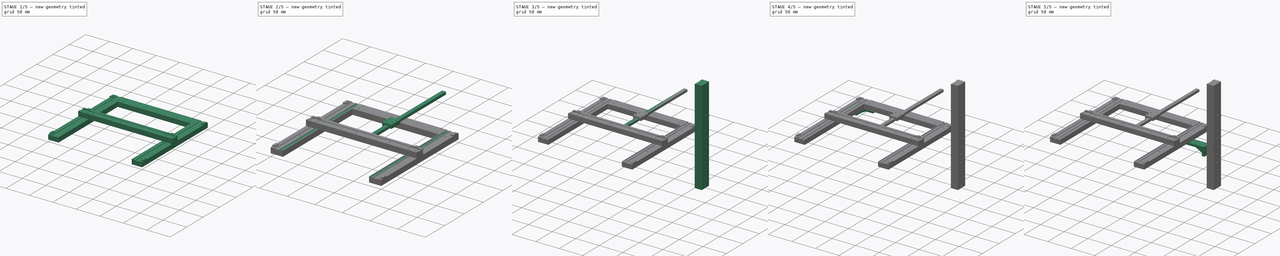
[diagram: build sequence overview — one tinted view per stage of 5, left to right]
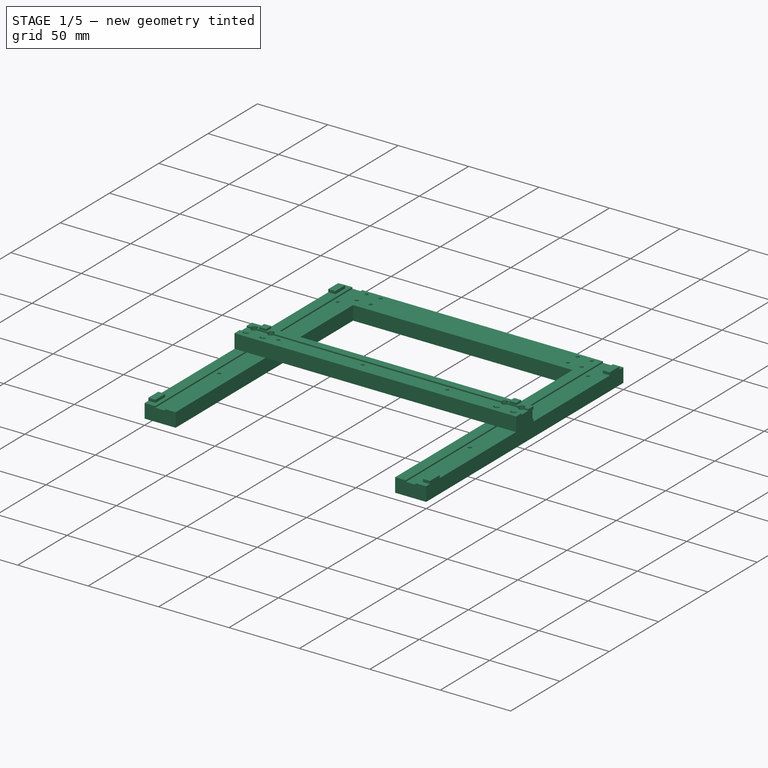
[diagram: stage 1 of 5 — iso view after this stage's code; geometry added in this stage tinted green]
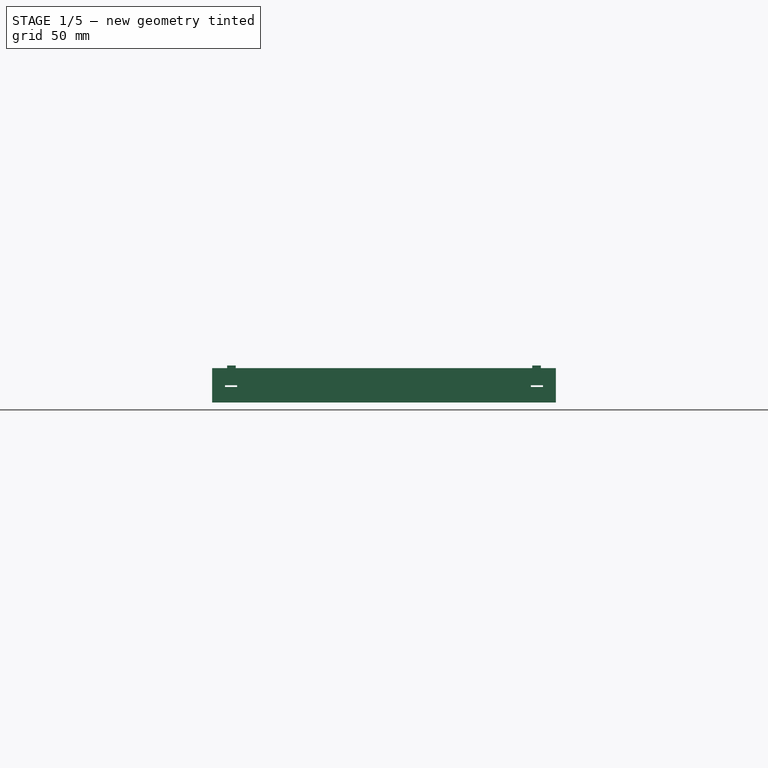
[diagram: stage 1 of 5 — front view after this stage's code; geometry added in this stage tinted green]
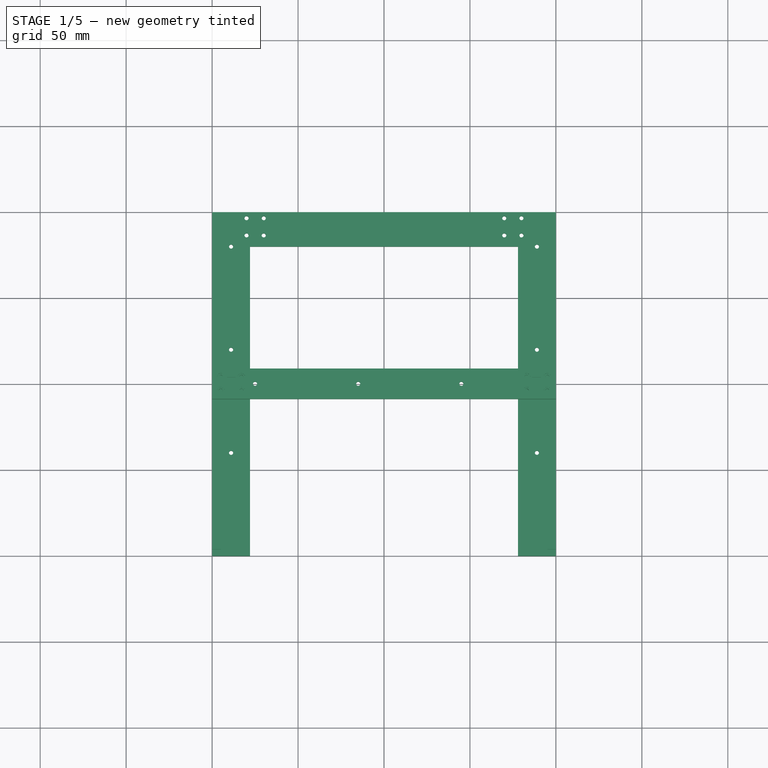
[diagram: stage 1 of 5 — top view after this stage's code; geometry added in this stage tinted green]
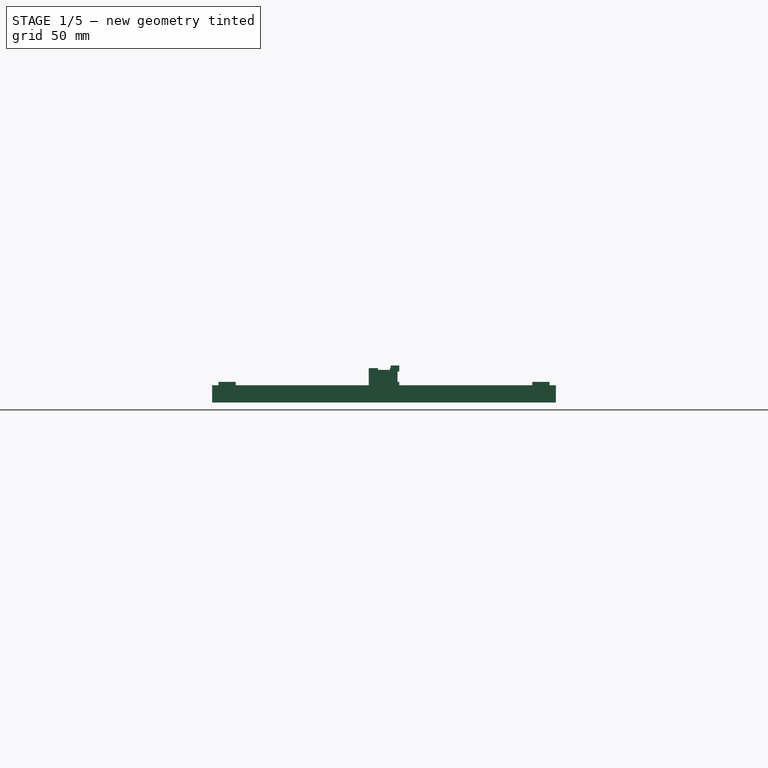
[diagram: stage 1 of 5 — right view after this stage's code; geometry added in this stage tinted green]
FCSTD DOCUMENT  (FreeCAD 0.19R24291 (Git))
Label: v2
License: All rights reserved
LicenseURL: http://en.wikipedia.org/wiki/All_rights_reserved
objects: Sketcher::SketchObject×42, PartDesign::Pocket×24, PartDesign::Pad×18, PartDesign::Body×10, Spreadsheet::Sheet×6, App::LinkGroup×3, Part::Mirroring×2, PartDesign::ShapeBinder×1
note: 139 computed .brp shape members not serialized (recipe doc carries the construction recipe); baked Part::Feature solids carry a one-line shape summary decoded from their .brp

FEATURE [Spreadsheet::Sheet] Spreadsheet  label="XRail"
  cells = B2=mm; A3=X_Axis_Length; B3(X_Axis_Length)==<<MGN7-C>>.Rail_Length; A4=Y_Axis_Length; B4=0; A5=Z_Axis_Length; B5=0; A8=Rail_Inlet; B8(Rail_Inlet)==<<MGN7-C>>.Rail_Bottom_To_Head_Bottom_Distance - 0.5; A11=Holder_Depth; B11(Holder_Depth)==<<MGN7-C>>.Head_Plate_Length + <<MGN7-C>>.Head_Screw_Head_Diameter; A12=Holder_Height; B12(Holder_Height)=10; A13=Holder_Width; B13(Holder_Width)==X_Axis_Length; A16=YRail_Attachment_Offset; B16(YRail_Attachment_Offset)==<<MGN7-C>>.Head_Screw_Head_Diameter * 1.2; A17=YRail_Attachment_Inlet; B17(YRail_Attachment_Inlet)==<<MGN7-C>>.Head_Screw_Head_Inlet; A18=YRail_Attachment_Inlet_Width; B18(YRail_Attachment_Inlet_Width)==(<<MGN7-C>>.Head_Width + <<MGN7-C>>.Head_Screw_Head_Diameter) * 1.2; A20=Rail_First_Screw_Distance; B20(Rail_First_Screw_Distance)==<<MGN7-C>>.Rail_End_To_First_Screw_Distance * 2 + <<MGN7-C>>.Rail_Screw_To_Screw_Distance; A21=Rail_Screw_To_Screw; B21(Rail_Screw_To_Screw)==<<MGN7-C>>.Rail_Screw_To_Screw_Distance * Rail_Screw_Multiplier; A22=Rail_Screw_Multiplier; B22(Rail_Screw_Multiplier)=4; A25=Stopper_Depth; B25(Stopper_Depth)=5; A26=Stopper_Width; B26(Stopper_Width)=5; A27=Stopper_Offset_To_Stopping_Edge; B27(Stopper_Offset_To_Stopping_Edge)==(X_Axis_Length - <<GeneralProperties>>.Sensor_Width - <<MGN7-C>>.Head_Length) / 2; A28=Stopper_Height; B28(Stopper_Height)==3 - <<MGN7-C>>.Rail_Bottom_To_Head_Bottom_Distance; A31=Potentiometer_Depth; B31(Potentiometer_Depth)=1; A32=Potentiometer_Height; B32(Potentiometer_Height)=6; A33=YRail_Stopper_Height; B33(YRail_Stopper_Height)=2
FEATURE [Spreadsheet::Sheet] Spreadsheet001  label="MGN7-C"
  cells = A4=Rail_Length; B4(Rail_Length)=200; A5=Rail_Width; B5(Rail_Width)=7; A6=Rail_Height; B6(Rail_Height)=4.8; A9=Rail_Bottom_To_Head_Face_Distance; B9(Rail_Bottom_To_Head_Face_Distance)=8; A10=Rail_Bottom_To_Head_Bottom_Distance; B10(Rail_Bottom_To_Head_Bottom_Distance)=1.5; A12=Head_Length; B12(Head_Length)=22.5; A13=Head_Width; B13(Head_Width)=17; A14=Head_Height; B14(Head_Height)==8 - 1.5; A15=Head_Plate_Length; B15(Head_Plate_Length)=13.5; A17=Head_Screw_Placement_Length; B17(Head_Screw_Placement_Length)=8; A18=Head_Screw_Placement_Width; B18(Head_Screw_Placement_Width)=12; A19=Head_Screw_Type; B19(Head_Screw_Type)=M2x2.5; A20=Head_Screw_Head_Diameter; B20(Head_Screw_Head_Diameter)=4.2; A21=Head_Screw_Body_Diameter; B21(Head_Screw_Body_Diameter)=2.4; A22=Head_Screw_Head_Inlet; B22(Head_Screw_Head_Inlet)=2.3; A23=Head_Screw_Hole_Height; B23(Head_Screw_Hole_Height)=2.5; A25=Rail_Screw_Head_Diameter; B25(Rail_Screw_Head_Diameter)=4.2; A26=Rail_Screw_Body_Diameter; B26(Rail_Screw_Body_Diameter)=2.4; A27=Rail_Screw_Head_Inlet; B27(Rail_Screw_Head_Inlet)=2.3; A29=Rail_End_To_First_Screw_Distance; B29(Rail_End_To_First_Screw_Distance)=5; A30=Rail_Screw_To_Screw_Distance; B30(Rail_Screw_To_Screw_Distance)=15; A31=Rail_Screw_Type; B31(Rail_Screw_Type)=M2x6; A34=Head_Plate_Step_Down; B34(Head_Plate_Step_Down)=0.1; A35=Offset1; B35(Offset1)=75
FEATURE [Sketcher::SketchObject] Sketch
  FullyConstrained = true
  MapMode = 5
  Support = -> [XY_Plane]
  expr: Constraints[53] = <<MGN7-C>>.Head_Screw_Body_Diameter / 2
  expr: Constraints[47] = <<MGN7-C>>.Head_Screw_Body_Diameter / 2
  expr: Constraints[36] = <<MGN7-C>>.Head_Screw_Placement_Width
  expr: Constraints[34] = <<MGN7-C>>.Head_Screw_Body_Diameter / 2
  expr: Constraints[18] = <<MGN7-C>>.Rail_Screw_Body_Diameter / 2
  expr: Constraints[31] = <<MGN7-C>>.Head_Screw_Body_Diameter / 2
  expr: Constraints[19] = <<XRail>>.Rail_Screw_To_Screw
  expr: Constraints[35] = <<MGN7-C>>.Head_Screw_Placement_Length
  expr: Constraints[49] = <<MGN7-C>>.Head_Screw_Body_Diameter / 2
  expr: Constraints[33] = <<MGN7-C>>.Head_Screw_Body_Diameter / 2
  expr: Constraints[15] = <<MGN7-C>>.Rail_Screw_Body_Diameter / 2
  expr: Constraints[32] = <<MGN7-C>>.Head_Screw_Body_Diameter / 2
  expr: Constraints[13] = <<MGN7-C>>.Rail_Screw_Body_Diameter / 2
  expr: Constraints[12] = <<XRail>>.Rail_First_Screw_Distance
  expr: Constraints[9] = <<XRail>>.Holder_Width
  expr: Constraints[16] = <<XRail>>.Rail_Screw_To_Screw
  expr: Constraints[8] = <<XRail>>.Holder_Depth
  expr: Constraints[52] = <<MGN7-C>>.Head_Screw_Body_Diameter / 2
  expr: Constraints[56] = <<XRail>>.YRail_Attachment_Offset
  sketch-geometry (23):
    g0: LineSegment StartX=-100 StartY=8.85 StartZ=0 EndX=100 EndY=8.85 EndZ=0
    g1: LineSegment StartX=100 StartY=8.85 StartZ=0 EndX=100 EndY=-8.85 EndZ=0
    g2: LineSegment StartX=100 StartY=-8.85 StartZ=0 EndX=-100 EndY=-8.85 EndZ=0
    g3: LineSegment StartX=-100 StartY=-8.85 StartZ=0 EndX=-100 EndY=8.85 EndZ=0
    g4: Circle CenterX=-75 CenterY=0 CenterZ=0 NormalX=0 NormalY=0 NormalZ=1 AngleXU=0 Radius=1.2
    g5: Circle CenterX=-15 CenterY=0 CenterZ=0 NormalX=0 NormalY=0 NormalZ=1 AngleXU=0 Radius=1.2
    g6: Circle CenterX=45 CenterY=0 CenterZ=0 NormalX=0 NormalY=0 NormalZ=1 AngleXU=0 Radius=1.2
    g7: Circle CenterX=-94.96 CenterY=4 CenterZ=0 NormalX=0 NormalY=0 NormalZ=1 AngleXU=0 Radius=1.2
    g8: Circle CenterX=-82.96 CenterY=4 CenterZ=0 NormalX=0 NormalY=0 NormalZ=1 AngleXU=0 Radius=1.2
    g9: Circle CenterX=-94.96 CenterY=-4 CenterZ=0 NormalX=0 NormalY=0 NormalZ=1 AngleXU=0 Radius=1.2
    g10: Circle CenterX=-82.96 CenterY=-4 CenterZ=0 NormalX=0 NormalY=0 NormalZ=1 AngleXU=0 Radius=1.2
    g11: LineSegment StartX=-94.96 StartY=4 StartZ=0 EndX=-82.96 EndY=4 EndZ=0
    g12: LineSegment StartX=-82.96 StartY=4 StartZ=0 EndX=-82.96 EndY=-4 EndZ=0
    g13: LineSegment StartX=-82.96 StartY=-4 StartZ=0 EndX=-94.96 EndY=-4 EndZ=0
    g14: LineSegment StartX=-94.96 StartY=-4 StartZ=0 EndX=-94.96 EndY=4 EndZ=0
    g15: LineSegment StartX=82.96 StartY=4 StartZ=0 EndX=94.96 EndY=4 EndZ=0
    g16: LineSegment StartX=94.96 StartY=4 StartZ=0 EndX=94.96 EndY=-4 EndZ=0
    g17: LineSegment StartX=94.96 StartY=-4 StartZ=0 EndX=82.96 EndY=-4 EndZ=0
    g18: LineSegment StartX=82.96 StartY=-4 StartZ=0 EndX=82.96 EndY=4 EndZ=0
    g19: Circle CenterX=82.96 CenterY=4 CenterZ=0 NormalX=0 NormalY=0 NormalZ=1 AngleXU=0 Radius=1.2
    g20: Circle CenterX=94.96 CenterY=4 CenterZ=0 NormalX=0 NormalY=0 NormalZ=1 AngleXU=0 Radius=1.2
    g21: Circle CenterX=82.96 CenterY=-4 CenterZ=0 NormalX=0 NormalY=0 NormalZ=1 AngleXU=0 Radius=1.2
    g22: Circle CenterX=94.96 CenterY=-4 CenterZ=0 NormalX=0 NormalY=0 NormalZ=1 AngleXU=0 Radius=1.2
  constraints (57):
    c: Coincident(g0,g1)
    c: Coincident(g1,g2)
    c: Coincident(g2,g3)
    c: Coincident(g3,g0)
    c: Horizontal(g0)
    c: Horizontal(g2)
    c: Vertical(g1)
    c: Vertical(g3)
    c: DistanceY(g3,g3) = 17.7
    c: DistanceX(g0,g0) = 200
    c: PointOnObject(g4,g-1)
    c: Symmetric(g0,g1,g-1)
    c: DistanceX(g0,g4) = 25
    c: Radius(g4) = 1.2
    c: PointOnObject(g5,g-1)
    c: Radius(g5) = 1.2
    c: DistanceX(g4,g5) = 60
    c: PointOnObject(g6,g-1)
    c: Radius(g6) = 1.2
    c: DistanceX(g5,g6) = 60
    c: Coincident(g11,g12)
    c: Coincident(g12,g13)
    c: Coincident(g13,g14)
    c: Coincident(g14,g11)
    c: Horizontal(g11)
    c: Horizontal(g13)
    c: Vertical(g12)
    c: Coincident(g11,g7)
    c: Coincident(g12,g10)
    c: Coincident(g11,g8)
    c: Coincident(g9,g13)
    c: Radius(g8) = 1.2
    c: Radius(g10) = 1.2
    c: Radius(g9) = 1.2
    c: Radius(g7) = 1.2
    c: DistanceY(g12,g12) = 8
    c: DistanceX(g11,g11) = 12
    c: Symmetric(g7,g9,g-1)
    c: Coincident(g15,g16)
    c: Coincident(g16,g17)
    c: Coincident(g17,g18)
    c: Coincident(g18,g15)
    c: Horizontal(g15)
    c: Horizontal(g17)
    c: Vertical(g16)
    c: Vertical(g18)
    c: Coincident(g19,g15)
    c: Radius(g19) = 1.2
    c: Coincident(g20,g15)
    c: Radius(g20) = 1.2
    c: Coincident(g21,g17)
    c: Coincident(g22,g16)
    c: Radius(g21) = 1.2
    c: Radius(g22) = 1.2
    c: Symmetric(g19,g8,g-2)
    c: Symmetric(g9,g22,g-2)
    c: DistanceX(g0,g7) = 5.04
FEATURE [PartDesign::Pad] Pad
  Direction = (1,1,1)
  Length = 10
  Length2 = 100
  Profile = -> Sketch
  Type = 0
  expr: Length = <<XRail>>.Holder_Height
FEATURE [Sketcher::SketchObject] Sketch001
  ExternalGeometry = -> [Pad]
  FullyConstrained = true
  MapMode = 5
  Placement = pos=(0,0,10) rot=(0,0,1;0rad)
  Support = -> [Pad]
  expr: Constraints[24] = <<MGN7-C>>.Head_Screw_Head_Diameter / 2
  expr: Constraints[11] = <<MGN7-C>>.Head_Screw_Head_Diameter / 2
  expr: Constraints[13] = <<MGN7-C>>.Head_Screw_Head_Diameter / 2
  expr: Constraints[9] = <<XRail>>.YRail_Attachment_Inlet_Width
  expr: Constraints[14] = <<MGN7-C>>.Head_Screw_Head_Diameter / 2
  expr: Constraints[20] = <<MGN7-C>>.Head_Screw_Head_Diameter / 2
  expr: Constraints[19] = <<MGN7-C>>.Head_Screw_Head_Diameter / 2
  expr: Constraints[25] = <<MGN7-C>>.Head_Screw_Head_Diameter / 2
  expr: Constraints[21] = <<MGN7-C>>.Head_Screw_Head_Diameter / 2
  sketch-geometry (12):
    g0: LineSegment StartX=-100 StartY=8.85 StartZ=0 EndX=-74.56 EndY=8.85 EndZ=0
    g1: LineSegment StartX=-74.56 StartY=8.85 StartZ=0 EndX=-74.56 EndY=-8.85 EndZ=0
    g2: LineSegment StartX=-74.56 StartY=-8.85 StartZ=0 EndX=-100 EndY=-8.85 EndZ=0
    g3: LineSegment StartX=-100 StartY=-8.85 StartZ=0 EndX=-100 EndY=8.85 EndZ=0
    g4: Circle CenterX=94.96 CenterY=-4 CenterZ=0 NormalX=0 NormalY=0 NormalZ=1 AngleXU=0 Radius=2.1
    g5: Circle CenterX=-94.96 CenterY=4 CenterZ=0 NormalX=0 NormalY=0 NormalZ=1 AngleXU=0 Radius=2.1
    g6: Circle CenterX=-82.96 CenterY=4 CenterZ=0 NormalX=0 NormalY=0 NormalZ=1 AngleXU=0 Radius=2.1
    g7: Circle CenterX=-82.96 CenterY=-4 CenterZ=0 NormalX=0 NormalY=0 NormalZ=1 AngleXU=0 Radius=2.1
    g8: Circle CenterX=94.96 CenterY=4 CenterZ=0 NormalX=0 NormalY=0 NormalZ=1 AngleXU=0 Radius=2.1
    g9: Circle CenterX=82.96 CenterY=4 CenterZ=0 NormalX=0 NormalY=0 NormalZ=1 AngleXU=0 Radius=2.1
    g10: Circle CenterX=-94.96 CenterY=-4 CenterZ=0 NormalX=0 NormalY=0 NormalZ=1 AngleXU=0 Radius=2.1
    g11: Circle CenterX=82.96 CenterY=-4 CenterZ=0 NormalX=0 NormalY=0 NormalZ=1 AngleXU=0 Radius=2.1
  constraints (26):
    c: Coincident(g0,g1)
    c: Coincident(g1,g2)
    c: Coincident(g2,g3)
    c: Coincident(g3,g0)
    c: Horizontal(g0)
    c: Horizontal(g2)
    c: Vertical(g3)
    c: Coincident(g0,g-6)
    c: Symmetric(g1,g0,g-1)
    c: DistanceX(g0,g0) = 25.44
    c: Coincident(g4,g-3)
    c: Radius(g4) = 2.1
    c: Coincident(g5,g-9)
    c: Radius(g5) = 2.1
    c: Radius(g6) = 2.1
    c: Coincident(g6,g-11)
    c: Coincident(g7,g-13)
    c: Coincident(g8,g-14)
    c: Coincident(g9,g-15)
    c: Radius(g9) = 2.1
    c: Radius(g7) = 2.1
    c: Radius(g8) = 2.1
    c: Coincident(g10,g-8)
    c: Coincident(g11,g-12)
    c: Radius(g11) = 2.1
    c: Radius(g10) = 2.1
FEATURE [PartDesign::Pocket] Pocket
  BaseFeature = -> Pad
  Length = 3.3
  Length2 = 100
  Profile = -> Sketch001
  Type = 0
  expr: Length = <<XRail>>.YRail_Attachment_Inlet + <<XRail>>.Rail_Inlet
FEATURE [Sketcher::SketchObject] Sketch002
  ExternalGeometry = -> [Pocket]
  FullyConstrained = true
  MapMode = 5
  Placement = pos=(100,0,0) rot=(0.57735,0.57735,0.57735;2.0944rad)
  Support = -> [Pocket]
  expr: Constraints[9] = <<XRail>>.Rail_Inlet
  expr: Constraints[10] = <<MGN7-C>>.Rail_Width
  sketch-geometry (4):
    g0: LineSegment StartX=-3.5 StartY=10 StartZ=0 EndX=3.5 EndY=10 EndZ=0
    g1: LineSegment StartX=3.5 StartY=10 StartZ=0 EndX=3.5 EndY=9 EndZ=0
    g2: LineSegment StartX=3.5 StartY=9 StartZ=0 EndX=-3.5 EndY=9 EndZ=0
    g3: LineSegment StartX=-3.5 StartY=9 StartZ=0 EndX=-3.5 EndY=10 EndZ=0
  constraints (11):
    c: Coincident(g0,g1)
    c: Coincident(g1,g2)
    c: Coincident(g2,g3)
    c: Coincident(g3,g0)
    c: Horizontal(g0)
    c: Vertical(g1)
    c: Vertical(g3)
    c: PointOnObject(g0,g-3)
    c: Symmetric(g1,g2,g-2)
    c: DistanceY(g3,g3) = 1
    c: DistanceX(g0,g0) = 7
FEATURE [PartDesign::Pocket] Pocket001
  BaseFeature = -> Pocket
  Length = 200
  Length2 = 100
  Profile = -> Sketch002
  Type = 0
  expr: Length = <<XRail>>.Holder_Width
FEATURE [Sketcher::SketchObject] Sketch003
  FullyConstrained = true
  MapMode = 5
  Support = -> [XY_Plane001]
  expr: Constraints[38] = <<MGN7-C>>.Rail_Screw_Body_Diameter / 2
  expr: Constraints[19] = <<YRail>>.Body_Depth
  expr: Constraints[28] = <<YRail>>.Rail_Middle_Width
  expr: Constraints[39] = <<YRail>>.Rail_Screw_To_Screw
  expr: Constraints[40] = <<YRail>>.Rail_Screw_To_Screw
  expr: Constraints[33] = <<MGN7-C>>.Rail_Screw_Body_Diameter / 2
  expr: Constraints[37] = <<MGN7-C>>.Rail_Screw_Body_Diameter / 2
  expr: Constraints[35] = <<MGN7-C>>.Rail_Screw_Body_Diameter / 2
  expr: Constraints[16] = Spreadsheet002.Carrier_Width
  expr: Constraints[36] = <<MGN7-C>>.Rail_Screw_Body_Diameter / 2
  expr: Constraints[34] = <<MGN7-C>>.Rail_Screw_Body_Diameter / 2
  expr: Constraints[13] = <<YRail>>.Body_Width
  expr: Constraints[17] = <<YRail>>.Carrier_Depth
  expr: Constraints[41] = <<YRail>>.Rail_First_Screw_Offset
  sketch-geometry (17):
    g0: LineSegment StartX=-99.96 StartY=100 StartZ=0 EndX=99.96 EndY=100 EndZ=0
    g1: LineSegment StartX=99.96 StartY=100 StartZ=0 EndX=99.96 EndY=-100 EndZ=0
    g2: LineSegment StartX=-99.96 StartY=-100 StartZ=0 EndX=-99.96 EndY=100 EndZ=0
    g3: LineSegment StartX=77.96 StartY=-100 StartZ=0 EndX=77.96 EndY=80 EndZ=0
    g4: LineSegment StartX=77.96 StartY=80 StartZ=0 EndX=-77.96 EndY=80 EndZ=0
    g5: LineSegment StartX=-77.96 StartY=80 StartZ=0 EndX=-77.96 EndY=-100 EndZ=0
    g6: LineSegment StartX=-99.96 StartY=-100 StartZ=0 EndX=-77.96 EndY=-100 EndZ=0
    g7: LineSegment StartX=77.96 StartY=-100 StartZ=0 EndX=99.96 EndY=-100 EndZ=0
    g8: LineSegment StartX=-77.96 StartY=-100 StartZ=0 EndX=77.96 EndY=-100 EndZ=0
    g9: LineSegment StartX=-88.96 StartY=100 StartZ=0 EndX=-88.96 EndY=-100 EndZ=0
    g10: LineSegment StartX=88.96 StartY=-100 StartZ=0 EndX=88.96 EndY=100 EndZ=0
    g11: Circle CenterX=-88.96 CenterY=80 CenterZ=0 NormalX=0 NormalY=0 NormalZ=1 AngleXU=0 Radius=1.2
    g12: Circle CenterX=88.96 CenterY=80 CenterZ=0 NormalX=0 NormalY=0 NormalZ=1 AngleXU=0 Radius=1.2
    g13: Circle CenterX=88.96 CenterY=20 CenterZ=0 NormalX=0 NormalY=0 NormalZ=1 AngleXU=0 Radius=1.2
    g14: Circle CenterX=-88.96 CenterY=20 CenterZ=0 NormalX=0 NormalY=0 NormalZ=1 AngleXU=0 Radius=1.2
    g15: Circle CenterX=-88.96 CenterY=-40 CenterZ=0 NormalX=0 NormalY=0 NormalZ=1 AngleXU=0 Radius=1.2
    g16: Circle CenterX=88.96 CenterY=-40 CenterZ=0 NormalX=0 NormalY=0 NormalZ=1 AngleXU=0 Radius=1.2
  constraints (45):
    c: Coincident(g0,g1)
    c: Coincident(g2,g0)
    c: Vertical(g2)
    c: Coincident(g3,g4)
    c: Coincident(g4,g5)
    c: Vertical(g3)
    c: Vertical(g5)
    c: Coincident(g6,g2)
    c: Coincident(g6,g5)
    c: Horizontal(g6)
    c: Coincident(g7,g3)
    c: Coincident(g7,g1)
    c: Horizontal(g7)
    c: DistanceX(g0,g0) = 199.92
    c: Symmetric(g0,g0,g-2)
    c: Symmetric(g4,g3,g-2)
    c: DistanceX(g3,g0) = 22
    c: DistanceY(g3,g0) = 20
    c: Symmetric(g0,g1,g-1)
    c: DistanceY(g1,g1) = 200
    c: Coincident(g8,g5)
    c: Coincident(g8,g3)
    c: Horizontal(g8)
    c: PointOnObject(g9,g0)
    c: PointOnObject(g9,g6)
    c: Vertical(g9)
    c: PointOnObject(g10,g0)
    c: Vertical(g10)
    c: DistanceX(g9,g10) = 177.92
    c: Symmetric(g10,g9,g-2)
    c: PointOnObject(g11,g9)
    c: PointOnObject(g13,g10)
    c: PointOnObject(g15,g9)
    c: Radius(g12) = 1.2
    c: Radius(g11) = 1.2
    c: Radius(g14) = 1.2
    c: Radius(g15) = 1.2
    c: Radius(g16) = 1.2
    c: Radius(g13) = 1.2
    c: DistanceY(g16,g13) = 60
    c: DistanceY(g13,g12) = 60
    c: DistanceY(g12,g10) = 20
    c: Symmetric(g11,g12,g-2)
    c: Symmetric(g14,g13,g-2)
    c: Symmetric(g15,g16,g-2)
FEATURE [Spreadsheet::Sheet] Spreadsheet002  label="YRail"
  cells = A3=Body_Depth; B3(Body_Depth)=200; A4=Body_Width; B4(Body_Width)==Rail_Middle_Width + Carrier_Width; A5=Body_Height; B5(Body_Height)=10; A6=Carrier_Width; B6(Carrier_Width)=22; A7=Carrier_Depth; B7(Carrier_Depth)=20; A10=Rail_Middle_Width; B10(Rail_Middle_Width)==<<XRail>>.Holder_Width - <<XRail>>.YRail_Attachment_Offset * 2 - <<MGN7-C>>.Head_Screw_Placement_Width * 1 / 2 * 2; A13=Rail_Screw_Multiplier; B13(Rail_Screw_Multiplier)=4; A14=Rail_First_Screw_Offset; B14(Rail_First_Screw_Offset)==<<MGN7-C>>.Rail_End_To_First_Screw_Distance + <<MGN7-C>>.Rail_Screw_To_Screw_Distance; A15=Rail_Screw_To_Screw; B15(Rail_Screw_To_Screw)==<<MGN7-C>>.Rail_Screw_To_Screw_Distance * Rail_Screw_Multiplier; A17=Rail_Inlet_Width; B17(Rail_Inlet_Width)==<<MGN7-C>>.Rail_Width; A18=Rail_Inlet_Height; B18(Rail_Inlet_Height)==<<XRail>>.Rail_Inlet; A20=Stopper_Height; B20(Stopper_Height)==<<XRail>>.YRail_Stopper_Height; A21=Stopper_Offset_Stopping_Edge; B21(Stopper_Offset_Stopping_Edge)==<<XRail>>.Stopper_Offset_To_Stopping_Edge; A22=Stopper_Depth; B22(Stopper_Depth)=10; A23=Stopper_Width; B23(Stopper_Width)=5
FEATURE [PartDesign::Pad] Pad001
  Direction = (1,1,1)
  Length = 10
  Length2 = 100
  Profile = -> Sketch003
  Reversed = true
  Type = 0
  expr: Length = <<YRail>>.Body_Height
FEATURE [Sketcher::SketchObject] Sketch004
  ExternalGeometry = -> [Pad001]
  FullyConstrained = true
  MapMode = 5
  Placement = pos=(0,100,0) rot=(0,0.707107,0.707107;3.14159rad)
  Support = -> [Pad001]
  expr: Constraints[18] = <<YRail>>.Rail_Middle_Width / 2
  expr: Constraints[16] = <<YRail>>.Rail_Inlet_Width
  expr: Constraints[15] = <<YRail>>.Rail_Inlet_Height
  sketch-geometry (9):
    g0: LineSegment StartX=-85.46 StartY=0 StartZ=0 EndX=-85.46 EndY=-1 EndZ=0
    g1: LineSegment StartX=-85.46 StartY=-1 StartZ=0 EndX=-92.46 EndY=-1 EndZ=0
    g2: LineSegment StartX=-92.46 StartY=-1 StartZ=0 EndX=-92.46 EndY=1 EndZ=0
    g3: LineSegment StartX=85.46 StartY=0 StartZ=0 EndX=85.46 EndY=-1 EndZ=0
    g4: LineSegment StartX=85.46 StartY=-1 StartZ=0 EndX=92.46 EndY=-1 EndZ=0
    g5: LineSegment StartX=92.46 StartY=-1 StartZ=0 EndX=92.46 EndY=1 EndZ=0
    g6: LineSegment StartX=-92.46 StartY=1 StartZ=0 EndX=92.46 EndY=1 EndZ=0
    g7: GeomPoint X=-88.96 Y=-1 Z=0
    g8: LineSegment StartX=-85.46 StartY=0 StartZ=0 EndX=85.46 EndY=0 EndZ=0
  constraints (22):
    c: Coincident(g0,g1)
    c: Coincident(g1,g2)
    c: Horizontal(g1)
    c: Vertical(g0)
    c: Vertical(g2)
    c: PointOnObject(g0,g-4)
    c: Coincident(g3,g4)
    c: Coincident(g4,g5)
    c: Vertical(g3)
    c: PointOnObject(g3,g-4)
    c: Coincident(g6,g2)
    c: Coincident(g6,g5)
    c: Horizontal(g6)
    c: Symmetric(g4,g5,g-1)
    c: Symmetric(g0,g3,g-2)
    c: DistanceY(g0,g0) = 1
    c: DistanceX(g1,g1) = 7
    c: Symmetric(g1,g0,g7)
    c: DistanceX(g7,g-1) = 88.96
    c: Symmetric(g4,g1,g-2)
    c: Coincident(g8,g0)
    c: Coincident(g8,g3)
FEATURE [PartDesign::Pocket] Pocket002
  BaseFeature = -> Pad001
  Length = 200
  Length2 = 100
  Profile = -> Sketch004
  Type = 0
  expr: Length = <<YRail>>.Body_Depth
FEATURE [PartDesign::Body] Body002  label="YZConnectorBody"
  Group = -> [ReferencePocket002,Sketch005,Pad002,Sketch006,Pocket003,Sketch007,Pocket004,Sketch008,Pocket005,Sketch009,Pocket006,Sketch010,Pocket007]
  Origin = -> Origin002
  Placement = pos=(0,-2.5,-25.5) rot=(0,0,1;0rad)
  Tip = -> Pocket007
FEATURE [Sketcher::SketchObject] Sketch011
  ExternalGeometry = -> [Pocket002]
  FullyConstrained = true
  MapMode = 5
  Placement = pos=(0,0,-10) rot=(1,0,0;3.14159rad)
  Support = -> [Pocket002]
  expr: Constraints[38] = <<YZConnector>>.Screw_Body_Diameter / 2
  expr: Constraints[37] = <<YZConnector>>.Screw_Body_Diameter / 2
  expr: Constraints[35] = <<YZConnector>>.Screw_Body_Diameter / 2
  expr: Constraints[12] = <<YZConnector>>.Screw_Body_Diameter / 2
  expr: Constraints[13] = <<YZConnector>>.Screw_Body_Diameter / 2
  expr: Constraints[14] = <<YZConnector>>.Screw_Body_Diameter / 2
  expr: Constraints[22] = <<YZConnector>>.Body_Depth / 2
  expr: Constraints[15] = <<YZConnector>>.Screw_Body_Diameter / 2
  expr: Constraints[20] = <<YZConnector>>.YRail_Screw_Depth_Spacing
  expr: Constraints[36] = <<YZConnector>>.Screw_Body_Diameter / 2
  expr: Constraints[18] = <<YZConnector>>.YRail_First_Screw_Offset
  expr: Constraints[21] = <<YZConnector>>.YRail_Screw_Width_Spacing
  sketch-geometry (17):
    g0: LineSegment StartX=-79.96 StartY=-86.5 StartZ=0 EndX=-69.96 EndY=-86.5 EndZ=0
    g1: LineSegment StartX=-69.96 StartY=-86.5 StartZ=0 EndX=-69.96 EndY=-96.5 EndZ=0
    g2: LineSegment StartX=-69.96 StartY=-96.5 StartZ=0 EndX=-79.96 EndY=-96.5 EndZ=0
    g3: LineSegment StartX=-79.96 StartY=-96.5 StartZ=0 EndX=-79.96 EndY=-86.5 EndZ=0
    g4: Circle CenterX=-79.96 CenterY=-86.5 CenterZ=0 NormalX=0 NormalY=0 NormalZ=1 AngleXU=0 Radius=1.2
    g5: Circle CenterX=-69.96 CenterY=-86.5 CenterZ=0 NormalX=0 NormalY=0 NormalZ=1 AngleXU=0 Radius=1.2
    g6: Circle CenterX=-69.96 CenterY=-96.5 CenterZ=0 NormalX=0 NormalY=0 NormalZ=1 AngleXU=0 Radius=1.2
    g7: Circle CenterX=-79.96 CenterY=-96.5 CenterZ=0 NormalX=0 NormalY=0 NormalZ=1 AngleXU=0 Radius=1.2
    g8: LineSegment StartX=-74.96 StartY=-91.5 StartZ=0 EndX=-74.96 EndY=-100 EndZ=0
    g9: LineSegment StartX=69.96 StartY=-86.5 StartZ=0 EndX=79.96 EndY=-86.5 EndZ=0
    g10: LineSegment StartX=79.96 StartY=-86.5 StartZ=0 EndX=79.96 EndY=-96.5 EndZ=0
    g11: LineSegment StartX=79.96 StartY=-96.5 StartZ=0 EndX=69.96 EndY=-96.5 EndZ=0
    g12: LineSegment StartX=69.96 StartY=-96.5 StartZ=0 EndX=69.96 EndY=-86.5 EndZ=0
    g13: Circle CenterX=69.96 CenterY=-86.5 CenterZ=0 NormalX=0 NormalY=0 NormalZ=1 AngleXU=0 Radius=1.2
    g14: Circle CenterX=79.96 CenterY=-86.5 CenterZ=0 NormalX=0 NormalY=0 NormalZ=1 AngleXU=0 Radius=1.2
    g15: Circle CenterX=79.96 CenterY=-96.5 CenterZ=0 NormalX=0 NormalY=0 NormalZ=1 AngleXU=0 Radius=1.2
    g16: Circle CenterX=69.96 CenterY=-96.5 CenterZ=0 NormalX=0 NormalY=0 NormalZ=1 AngleXU=0 Radius=1.2
  constraints (41):
    c: Coincident(g0,g1)
    c: Coincident(g1,g2)
    c: Coincident(g2,g3)
    c: Coincident(g3,g0)
    c: Horizontal(g0)
    c: Horizontal(g2)
    c: Vertical(g1)
    c: Vertical(g3)
    c: Coincident(g4,g0)
    c: Coincident(g5,g0)
    c: Coincident(g6,g1)
    c: Coincident(g7,g2)
    c: Radius(g7) = 1.2
    c: Radius(g4) = 1.2
    c: Radius(g5) = 1.2
    c: Radius(g6) = 1.2
    c: PointOnObject(g8,g-4)
    c: Vertical(g8)
    c: DistanceX(g-4,g7) = 20
    c: Symmetric(g7,g5,g8)
    c: DistanceY(g1,g1) = 10
    c: DistanceX(g2,g2) = 10
    c: DistanceY(g8,g8) = 8.5
    c: Coincident(g9,g10)
    c: Coincident(g10,g11)
    c: Coincident(g11,g12)
    c: Coincident(g12,g9)
    c: Horizontal(g9)
    c: Horizontal(g11)
    c: Vertical(g10)
    c: Vertical(g12)
    c: Coincident(g13,g9)
    c: Coincident(g14,g9)
    c: Coincident(g15,g10)
    c: Coincident(g16,g11)
    c: Radius(g16) = 1.2
    c: Radius(g13) = 1.2
    c: Radius(g14) = 1.2
    c: Radius(g15) = 1.2
    c: Symmetric(g5,g13,g-2)
    c: Symmetric(g7,g15,g-2)
FEATURE [PartDesign::Pocket] Pocket008
  BaseFeature = -> Pocket002
  Length = 10
  Length2 = 100
  Profile = -> Sketch011
  Type = 0
  expr: Length = <<YRail>>.Body_Height
FEATURE [Spreadsheet::Sheet] Spreadsheet004  label="GeneralProperties"
  cells = A4=Sensor_Width; B4(Sensor_Width)=150; A5=Sensor_Depth; B5(Sensor_Depth)=150; A6=Sensor_Height; B6(Sensor_Height)=150; A10=Pot_Height; B10(Pot_Height)=1; A11=Pot_Width; B11(Pot_Width)=5; A12=Pot_Depth; B12(Pot_Depth)=200; A14=Pot_Edge_To_Rail_Distance; B14(Pot_Edge_To_Rail_Distance)=1; A16=Pot_Active_Width; B16(Pot_Active_Width)=3
FEATURE [Sketcher::SketchObject] Sketch012
  ExternalGeometry = -> [Pocket001]
  FullyConstrained = true
  MapMode = 5
  Placement = pos=(0,0,10) rot=(0,0,1;0rad)
  Support = -> [Pocket001]
  expr: Constraints[8] = Spreadsheet.Stopper_Offset_To_Stopping_Edge
  expr: Constraints[9] = <<XRail>>.Stopper_Width
  expr: Constraints[10] = <<XRail>>.Stopper_Depth
  sketch-geometry (8):
    g0: LineSegment StartX=86.25 StartY=8.85 StartZ=0 EndX=91.25 EndY=8.85 EndZ=0
    g1: LineSegment StartX=91.25 StartY=8.85 StartZ=0 EndX=91.25 EndY=3.85 EndZ=0
    g2: LineSegment StartX=91.25 StartY=3.85 StartZ=0 EndX=86.25 EndY=3.85 EndZ=0
    g3: LineSegment StartX=86.25 StartY=3.85 StartZ=0 EndX=86.25 EndY=8.85 EndZ=0
    g4: LineSegment StartX=-91.25 StartY=8.85 StartZ=0 EndX=-86.25 EndY=8.85 EndZ=0
    g5: LineSegment StartX=-86.25 StartY=8.85 StartZ=0 EndX=-86.25 EndY=3.85 EndZ=0
    g6: LineSegment StartX=-86.25 StartY=3.85 StartZ=0 EndX=-91.25 EndY=3.85 EndZ=0
    g7: LineSegment StartX=-91.25 StartY=3.85 StartZ=0 EndX=-91.25 EndY=8.85 EndZ=0
  constraints (22):
    c: Coincident(g0,g1)
    c: Coincident(g1,g2)
    c: Coincident(g2,g3)
    c: Coincident(g3,g0)
    c: Horizontal(g0)
    c: Horizontal(g2)
    c: Vertical(g1)
    c: Vertical(g3)
    c: DistanceX(g2,g-5) = 13.75
    c: DistanceX(g2,g2) = 5
    c: DistanceY(g3,g3) = 5
    c: Coincident(g4,g5)
    c: Coincident(g5,g6)
    c: Coincident(g6,g7)
    c: Coincident(g7,g4)
    c: Horizontal(g4)
    c: Horizontal(g6)
    c: Vertical(g5)
    c: Vertical(g7)
    c: Symmetric(g5,g2,g-2)
    c: Symmetric(g0,g4,g-2)
    c: PointOnObject(g0,g-6)
FEATURE [PartDesign::Pad] Pad003
  BaseFeature = -> Pocket001
  Direction = (1,1,1)
  Length = 1.5
  Length2 = 100
  Profile = -> Sketch012
  Type = 0
  expr: Length = <<XRail>>.Stopper_Height
FEATURE [PartDesign::Body] Body006  label="Rail_Y_2"
  Group = -> [Sketch026,Pad010,Sketch027,Pad011,Sketch029,Pocket016,Sketch028,Pocket017]
  Origin = -> Origin006
  Placement = pos=(-92.46,-100,-35) rot=(0,0,1;0rad)
  Tip = -> Pocket017
FEATURE [Sketcher::SketchObject] Sketch030
  ExternalGeometry = -> [Pocket008]
  FullyConstrained = true
  MapMode = 5
  Support = -> [Pocket008]
  expr: Constraints[8] = <<YRail>>.Stopper_Offset_Stopping_Edge
  expr: Constraints[20] = <<YRail>>.Stopper_Width
  expr: Constraints[10] = <<YRail>>.Stopper_Width
  expr: Constraints[19] = <<YRail>>.Stopper_Offset_Stopping_Edge
  expr: Constraints[9] = <<YRail>>.Stopper_Depth
  expr: Constraints[21] = <<YRail>>.Stopper_Depth
  sketch-geometry (17):
    g0: LineSegment StartX=94.96 StartY=96.25 StartZ=0 EndX=99.96 EndY=96.25 EndZ=0
    g1: LineSegment StartX=99.96 StartY=96.25 StartZ=0 EndX=99.96 EndY=86.25 EndZ=0
    g2: LineSegment StartX=99.96 StartY=86.25 StartZ=0 EndX=94.96 EndY=86.25 EndZ=0
    g3: LineSegment StartX=94.96 StartY=86.25 StartZ=0 EndX=94.96 EndY=96.25 EndZ=0
    g4: LineSegment StartX=94.96 StartY=-86.25 StartZ=0 EndX=99.96 EndY=-86.25 EndZ=0
    g5: LineSegment StartX=99.96 StartY=-86.25 StartZ=0 EndX=99.96 EndY=-96.25 EndZ=0
    g6: LineSegment StartX=99.96 StartY=-96.25 StartZ=0 EndX=94.96 EndY=-96.25 EndZ=0
    g7: LineSegment StartX=94.96 StartY=-96.25 StartZ=0 EndX=94.96 EndY=-86.25 EndZ=0
    g8: LineSegment StartX=-94.96 StartY=96.25 StartZ=0 EndX=-99.96 EndY=96.25 EndZ=0
    g9: LineSegment StartX=-99.96 StartY=96.25 StartZ=0 EndX=-99.96 EndY=86.25 EndZ=0
    g10: LineSegment StartX=-99.96 StartY=86.25 StartZ=0 EndX=-94.96 EndY=86.25 EndZ=0
    g11: LineSegment StartX=-94.96 StartY=86.25 StartZ=0 EndX=-94.96 EndY=96.25 EndZ=0
    g12: LineSegment StartX=-99.96 StartY=-86.25 StartZ=0 EndX=-94.96 EndY=-86.25 EndZ=0
    g13: LineSegment StartX=-94.96 StartY=-86.25 StartZ=0 EndX=-94.96 EndY=-96.25 EndZ=0
    g14: LineSegment StartX=-94.96 StartY=-96.25 StartZ=0 EndX=-99.96 EndY=-96.25 EndZ=0
    g15: LineSegment StartX=-99.96 StartY=-96.25 StartZ=0 EndX=-99.96 EndY=-86.25 EndZ=0
    g16: LineSegment StartX=94.96 StartY=86.25 StartZ=0 EndX=94.96 EndY=-86.25 EndZ=0
  constraints (46):
    c: Coincident(g0,g1)
    c: Coincident(g1,g2)
    c: Coincident(g2,g3)
    c: Coincident(g3,g0)
    c: Horizontal(g0)
    c: Horizontal(g2)
    c: Vertical(g1)
    c: Vertical(g3)
    c: DistanceY(g2,g-4) = 13.75
    c: DistanceY(g3,g3) = 10
    c: DistanceX(g0,g0) = 5
    c: Coincident(g4,g5)
    c: Coincident(g5,g6)
    c: Coincident(g6,g7)
    c: Coincident(g7,g4)
    c: Horizontal(g4)
    c: Horizontal(g6)
    c: Vertical(g5)
    c: Vertical(g7)
    c: DistanceY(g-3,g4) = 13.75
    c: DistanceX(g4,g4) = 5
    c: DistanceY(g7,g7) = 10
    c: Coincident(g8,g9)
    c: Coincident(g9,g10)
    c: Coincident(g10,g11)
    c: Coincident(g11,g8)
    c: Horizontal(g8)
    c: Horizontal(g10)
    c: Vertical(g9)
    c: Vertical(g11)
    c: Coincident(g12,g13)
    c: Coincident(g13,g14)
    c: Coincident(g14,g15)
    c: Coincident(g15,g12)
    c: Horizontal(g12)
    c: Horizontal(g14)
    c: Vertical(g13)
    c: Vertical(g15)
    c: Symmetric(g13,g6,g-2)
    c: Symmetric(g12,g4,g-2)
    c: Symmetric(g8,g0,g-2)
    c: Symmetric(g10,g2,g-2)
    c: PointOnObject(g1,g-5)
    c: Coincident(g16,g2)
    c: Coincident(g16,g4)
    c: Vertical(g16)
FEATURE [PartDesign::Pad] Pad012
  BaseFeature = -> Pocket008
  Direction = (1,1,1)
  Length = 2
  Length2 = 100
  Profile = -> Sketch030
  Type = 0
  expr: Length = <<YRail>>.Stopper_Height
FEATURE [App::LinkGroup] LinkGroup002  label="Z_RAIL_ASSEMBLY"
  ElementList = -> [Part__Mirroring001,Body010,Body009,Body008]
  LinkMode = 0
FEATURE [App::LinkGroup] LinkGroup001  label="Y_RAIL_ASSEMBLY"
  ElementList = -> [Body005,Body006,Body001]
  LinkMode = 0
  Placement = pos=(0,-1.01328e-06,8.5) rot=(0,0,1;0rad)
FEATURE [PartDesign::Pocket] Pocket009
  BaseFeature = -> Pad003
  Length = 200
  Length2 = 100
  Profile = -> Sketch013
  Type = 0
  expr: Length = <<XRail>>.X_Axis_Length
FEATURE [PartDesign::Body] Body  label="XRailBody"
  Group = -> [Sketch,Pad,Sketch001,Pocket,Sketch002,Pocket001,Sketch012,Pad003,Sketch013,Pocket009]
  Origin = -> Origin
  Tip = -> Pocket009
FEATURE [App::LinkGroup] LinkGroup  label="X_RAIL_ASSEMBLY"
  ElementList = -> [Body004,Body]
  LinkMode = 0
  Placement = pos=(0,-36.15,-18.5) rot=(0,0,1;0rad)
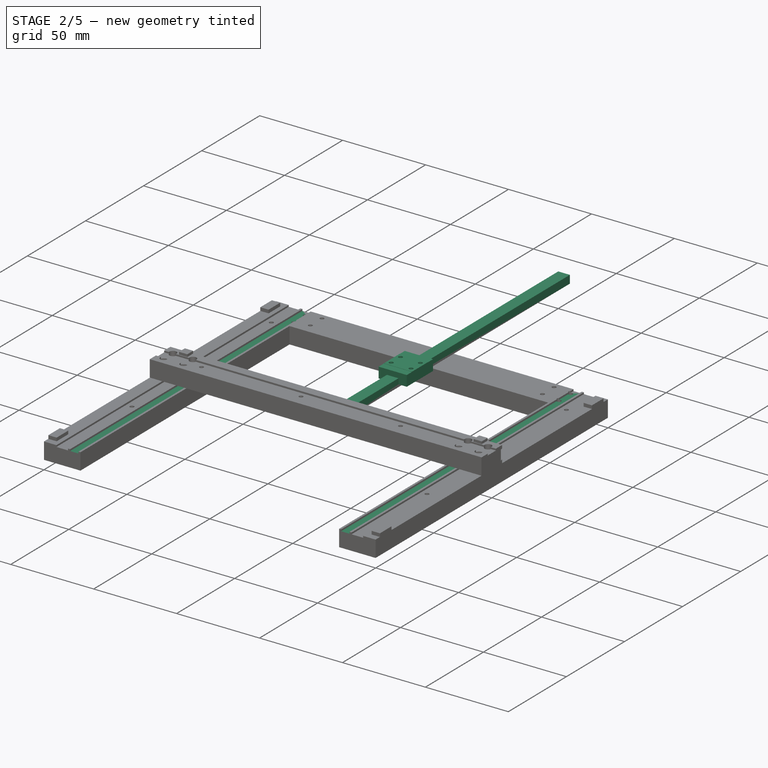
[diagram: stage 2 of 5 — iso view after this stage's code; geometry added in this stage tinted green]
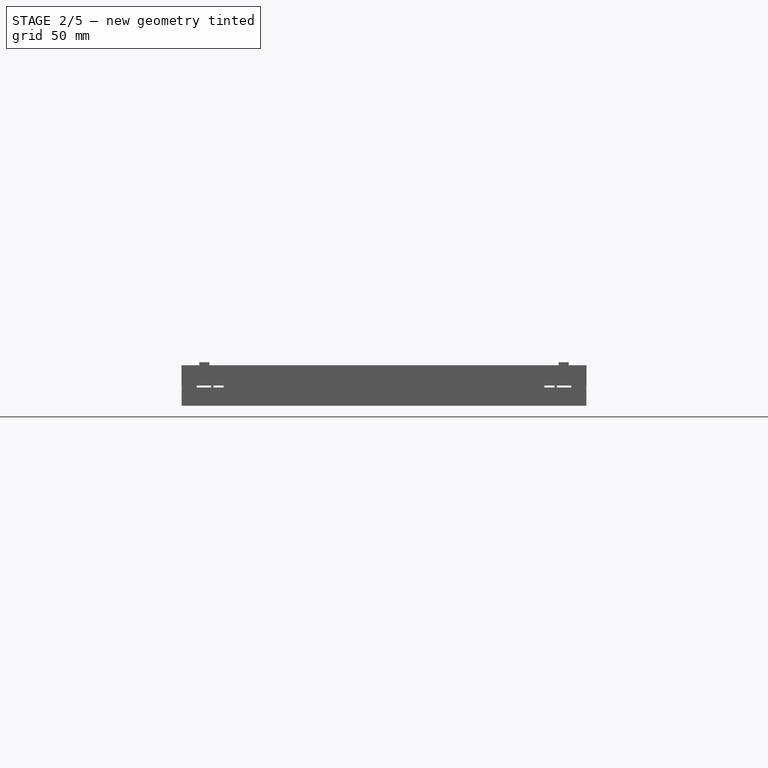
[diagram: stage 2 of 5 — front view after this stage's code; geometry added in this stage tinted green]
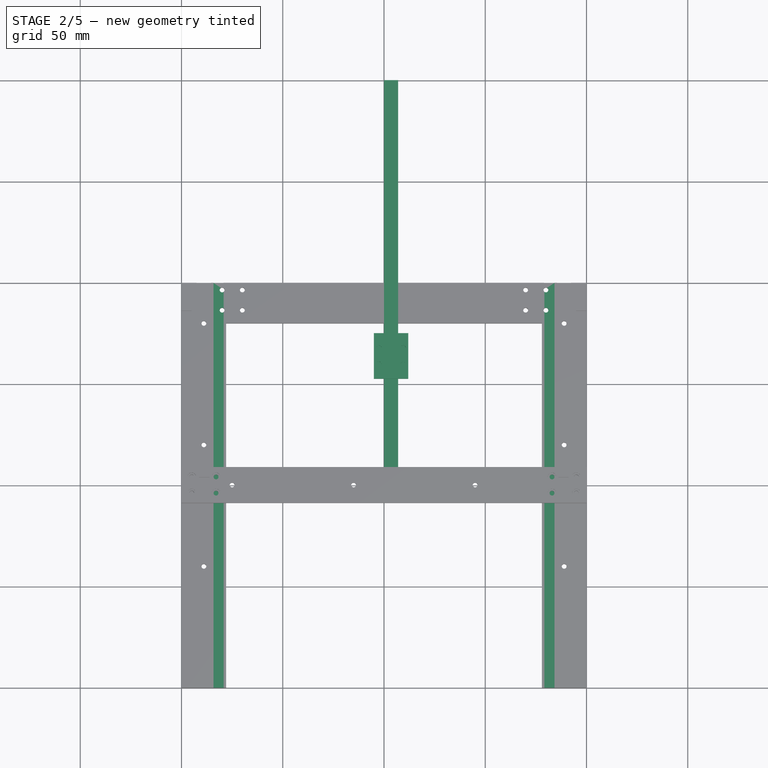
[diagram: stage 2 of 5 — top view after this stage's code; geometry added in this stage tinted green]
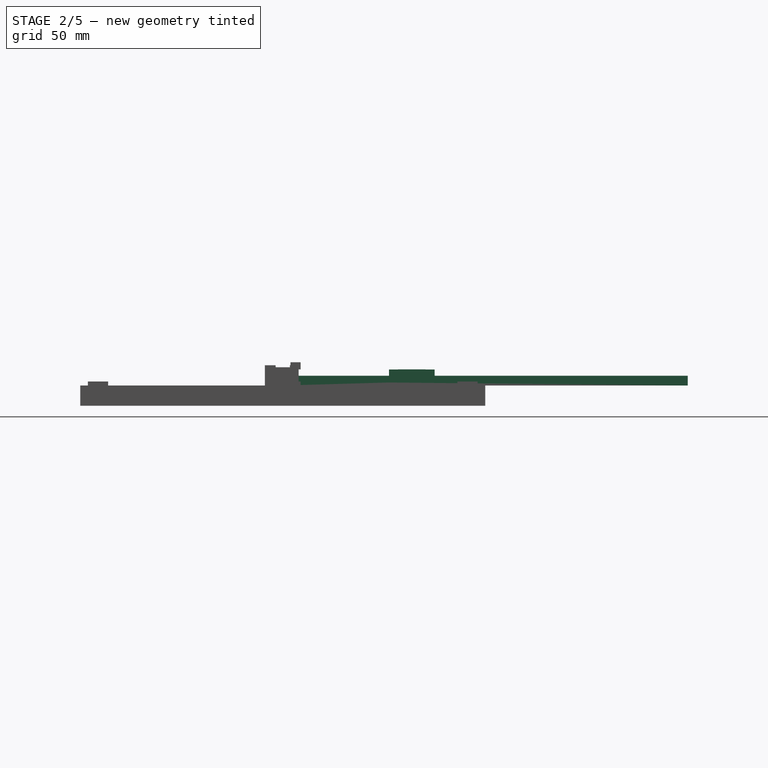
[diagram: stage 2 of 5 — right view after this stage's code; geometry added in this stage tinted green]
FEATURE [PartDesign::Body] Body004  label="Rail_X"
  Group = -> [Sketch018,Pad006,Sketch019,Pad007,Sketch021,Pocket012,Sketch020,Pocket013]
  Origin = -> Origin004
  Placement = pos=(100,-3.5,9) rot=(0,0,1;1.5708rad)
  Tip = -> Pocket013
FEATURE [Sketcher::SketchObject] Sketch022
  FullyConstrained = true
  MapMode = 5
  Placement = pos=(0,0,0) rot=(1,0,0;1.5708rad)
  Support = -> [XZ_Plane005]
  expr: Constraints[10] = <<MGN7-C>>.Rail_Height
  expr: Constraints[9] = <<MGN7-C>>.Rail_Width
  sketch-geometry (4):
    g0: LineSegment StartX=0 StartY=4.8 StartZ=0 EndX=7 EndY=4.8 EndZ=0
    g1: LineSegment StartX=7 StartY=4.8 StartZ=0 EndX=7 EndY=0 EndZ=0
    g2: LineSegment StartX=7 StartY=0 StartZ=0 EndX=0 EndY=0 EndZ=0
    g3: LineSegment StartX=0 StartY=0 StartZ=0 EndX=0 EndY=4.8 EndZ=0
  constraints (11):
    c: Coincident(g0,g1)
    c: Coincident(g1,g2)
    c: Coincident(g2,g3)
    c: Coincident(g3,g0)
    c: Horizontal(g0)
    c: Horizontal(g2)
    c: Vertical(g1)
    c: Vertical(g3)
    c: Coincident(g2,g-1)
    c: DistanceX(g2,g2) = 7
    c: DistanceY(g1,g1) = 4.8
FEATURE [PartDesign::Pad] Pad008
  Direction = (1,1,1)
  Length = 200
  Length2 = 100
  Placement = pos=(0,0,0) rot=(1,0,0;1.5708rad)
  Profile = -> Sketch022
  Reversed = true
  Type = 0
  expr: Length = <<MGN7-C>>.Rail_Length
FEATURE [Sketcher::SketchObject] Sketch023
  AttachmentOffset = pos=(0,0,-3.3) rot=(0,0,1;0rad)
  ExternalGeometry = -> [Pad008]
  FullyConstrained = true
  MapMode = 5
  Placement = pos=(0,3e-16,1.5) rot=(0,0,1;3.14159rad)
  Support = -> [Pad008]
  expr: .AttachmentOffset.Base.z = -<<MGN7-C>>.Rail_Height + <<MGN7-C>>.Rail_Bottom_To_Head_Bottom_Distance
  expr: Constraints[10] = <<MGN7-C>>.Head_Width
  expr: Constraints[9] = <<MGN7-C>>.Head_Length
  expr: Constraints[8] = <<MGN7-C>>.Offset1
  sketch-geometry (6):
    g0: LineSegment StartX=-12 StartY=-75 StartZ=0 EndX=5 EndY=-75 EndZ=0
    g1: LineSegment StartX=5 StartY=-75 StartZ=0 EndX=5 EndY=-52.5 EndZ=0
    g2: LineSegment StartX=5 StartY=-52.5 StartZ=0 EndX=-12 EndY=-52.5 EndZ=0
    g3: LineSegment StartX=-12 StartY=-52.5 StartZ=0 EndX=-12 EndY=-75 EndZ=0
    g4: GeomPoint X=-3.5 Y=-52.5 Z=0
    g5: LineSegment StartX=-3.5 StartY=0 StartZ=0 EndX=-3.5 EndY=-52.5 EndZ=0
  constraints (15):
    c: Coincident(g0,g1)
    c: Coincident(g1,g2)
    c: Coincident(g2,g3)
    c: Coincident(g3,g0)
    c: Horizontal(g0)
    c: Horizontal(g2)
    c: Vertical(g1)
    c: Vertical(g3)
    c: DistanceY(g0,g-1) = 75
    c: DistanceY(g1,g1) = 22.5
    c: DistanceX(g2,g2) = 17
    c: Symmetric(g2,g1,g4)
    c: Coincident(g5,g4)
    c: Vertical(g5)
    c: Symmetric(g-4,g-1,g5)
FEATURE [PartDesign::Pad] Pad009
  BaseFeature = -> Pad008
  Direction = (1,1,1)
  Length = 6.5
  Length2 = 100
  Placement = pos=(0,0,0) rot=(1,0,0;1.5708rad)
  Profile = -> Sketch023
  Type = 0
  expr: Length = <<MGN7-C>>.Head_Height
FEATURE [Sketcher::SketchObject] Sketch025
  ExternalGeometry = -> [Pad009]
  FullyConstrained = true
  MapMode = 5
  Placement = pos=(0,-1e-16,8) rot=(0,0,1;3.14159rad)
  Support = -> [Pad009]
  expr: Constraints[11] = <<MGN7-C>>.Head_Plate_Length
  sketch-geometry (13):
    g0: LineSegment StartX=-12 StartY=-57 StartZ=0 EndX=5 EndY=-57 EndZ=0
    g1: LineSegment StartX=5 StartY=-57 StartZ=0 EndX=5 EndY=-70.5 EndZ=0
    g2: LineSegment StartX=5 StartY=-70.5 StartZ=0 EndX=-12 EndY=-70.5 EndZ=0
    g3: LineSegment StartX=-12 StartY=-70.5 StartZ=0 EndX=-12 EndY=-57 EndZ=0
    g4: GeomPoint X=-12 Y=-63.75 Z=0
    g5: LineSegment StartX=-12 StartY=-52.5 StartZ=0 EndX=5 EndY=-52.5 EndZ=0
    g6: LineSegment StartX=5 StartY=-52.5 StartZ=0 EndX=5 EndY=-57 EndZ=0
    g7: LineSegment StartX=5 StartY=-57 StartZ=0 EndX=-12 EndY=-57 EndZ=0
    g8: LineSegment StartX=-12 StartY=-57 StartZ=0 EndX=-12 EndY=-52.5 EndZ=0
    g9: LineSegment StartX=-12 StartY=-70.5 StartZ=0 EndX=5 EndY=-70.5 EndZ=0
    g10: LineSegment StartX=5 StartY=-70.5 StartZ=0 EndX=5 EndY=-75 EndZ=0
    g11: LineSegment StartX=5 StartY=-75 StartZ=0 EndX=-12 EndY=-75 EndZ=0
    g12: LineSegment StartX=-12 StartY=-75 StartZ=0 EndX=-12 EndY=-70.5 EndZ=0
  constraints (32):
    c: Coincident(g0,g1)
    c: Coincident(g1,g2)
    c: Coincident(g2,g3)
    c: Coincident(g3,g0)
    c: Horizontal(g0)
    c: Horizontal(g2)
    c: Vertical(g1)
    c: Vertical(g3)
    c: PointOnObject(g0,g-5)
    c: Symmetric(g-4,g-3,g4)
    c: Symmetric(g0,g2,g4)
    c: DistanceY(g3,g3) = 13.5
    c: Coincident(g5,g6)
    c: Coincident(g6,g7)
    c: Coincident(g7,g8)
    c: Coincident(g8,g5)
    c: Horizontal(g5)
    c: Horizontal(g7)
    c: Vertical(g6)
    c: Vertical(g8)
    c: Coincident(g5,g-4)
    c: Coincident(g6,g0)
    c: Coincident(g9,g10)
    c: Coincident(g10,g11)
    c: Coincident(g11,g12)
    c: Coincident(g12,g9)
    c: Horizontal(g9)
    c: Horizontal(g11)
    c: Vertical(g10)
    c: Vertical(g12)
    c: Coincident(g9,g2)
    c: Coincident(g10,g-5)
FEATURE [PartDesign::Pocket] Pocket014
  BaseFeature = -> Pad009
  Length = 0.1
  Length2 = 100
  Placement = pos=(0,0,0) rot=(1,0,0;1.5708rad)
  Profile = -> Sketch025
  Type = 0
  expr: Length = <<MGN7-C>>.Head_Plate_Step_Down
FEATURE [Sketcher::SketchObject] Sketch024
  ExternalGeometry = -> [Pocket014]
  FullyConstrained = true
  MapMode = 5
  Placement = pos=(0,-1e-16,8) rot=(0,0,1;3.14159rad)
  Support = -> [Pocket014]
  expr: Constraints[14] = <<MGN7-C>>.Head_Screw_Body_Diameter / 2
  expr: Constraints[17] = <<MGN7-C>>.Head_Screw_Body_Diameter / 2
  expr: Constraints[15] = <<MGN7-C>>.Head_Screw_Body_Diameter / 2
  expr: Constraints[16] = <<MGN7-C>>.Head_Screw_Body_Diameter / 2
  expr: Constraints[18] = <<MGN7-C>>.Head_Screw_Placement_Length
  expr: Constraints[19] = <<MGN7-C>>.Head_Screw_Placement_Width
  sketch-geometry (9):
    g0: LineSegment StartX=-9.5 StartY=-59.75 StartZ=0 EndX=2.5 EndY=-59.75 EndZ=0
    g1: LineSegment StartX=2.5 StartY=-59.75 StartZ=0 EndX=2.5 EndY=-67.75 EndZ=0
    g2: LineSegment StartX=2.5 StartY=-67.75 StartZ=0 EndX=-9.5 EndY=-67.75 EndZ=0
    g3: LineSegment StartX=-9.5 StartY=-67.75 StartZ=0 EndX=-9.5 EndY=-59.75 EndZ=0
    g4: GeomPoint X=-3.5 Y=-63.75 Z=0
    g5: Circle CenterX=-9.5 CenterY=-59.75 CenterZ=0 NormalX=0 NormalY=0 NormalZ=1 AngleXU=0 Radius=1.2
    g6: Circle CenterX=2.5 CenterY=-59.75 CenterZ=0 NormalX=0 NormalY=0 NormalZ=1 AngleXU=0 Radius=1.2
    g7: Circle CenterX=2.5 CenterY=-67.75 CenterZ=0 NormalX=0 NormalY=0 NormalZ=1 AngleXU=0 Radius=1.2
    g8: Circle CenterX=-9.5 CenterY=-67.75 CenterZ=0 NormalX=0 NormalY=0 NormalZ=1 AngleXU=0 Radius=1.2
  constraints (20):
    c: Coincident(g0,g1)
    c: Coincident(g1,g2)
    c: Coincident(g2,g3)
    c: Coincident(g3,g0)
    c: Horizontal(g0)
    c: Horizontal(g2)
    c: Vertical(g1)
    c: Vertical(g3)
    c: Symmetric(g-4,g-3,g4)
    c: Symmetric(g0,g1,g4)
    c: Coincident(g5,g0)
    c: Coincident(g6,g0)
    c: Coincident(g7,g1)
    c: Coincident(g8,g2)
    c: Radius(g5) = 1.2
    c: Radius(g6) = 1.2
    c: Radius(g7) = 1.2
    c: Radius(g8) = 1.2
    c: DistanceY(g3,g3) = 8
    c: DistanceX(g0,g0) = 12
FEATURE [PartDesign::Pocket] Pocket015
  BaseFeature = -> Pocket014
  Length = 2.5
  Length2 = 100
  Placement = pos=(0,0,0) rot=(1,0,0;1.5708rad)
  Profile = -> Sketch024
  Type = 0
  expr: Length = <<MGN7-C>>.Head_Screw_Hole_Height
FEATURE [PartDesign::Body] Body005  label="Rail_Y_1"
  Group = -> [Sketch022,Pad008,Sketch023,Pad009,Sketch025,Pocket014,Sketch024,Pocket015]
  Origin = -> Origin005
  Placement = pos=(85.46,-100,-35) rot=(0,0,1;0rad)
  Tip = -> Pocket015
FEATURE [Sketcher::SketchObject] Sketch026
  FullyConstrained = true
  MapMode = 5
  Placement = pos=(0,0,0) rot=(1,0,0;1.5708rad)
  Support = -> [XZ_Plane006]
  expr: Constraints[9] = <<MGN7-C>>.Rail_Width
  expr: Constraints[10] = <<MGN7-C>>.Rail_Height
  sketch-geometry (4):
    g0: LineSegment StartX=0 StartY=4.8 StartZ=0 EndX=7 EndY=4.8 EndZ=0
    g1: LineSegment StartX=7 StartY=4.8 StartZ=0 EndX=7 EndY=0 EndZ=0
    g2: LineSegment StartX=7 StartY=0 StartZ=0 EndX=0 EndY=0 EndZ=0
    g3: LineSegment StartX=0 StartY=0 StartZ=0 EndX=0 EndY=4.8 EndZ=0
  constraints (11):
    c: Coincident(g0,g1)
    c: Coincident(g1,g2)
    c: Coincident(g2,g3)
    c: Coincident(g3,g0)
    c: Horizontal(g0)
    c: Horizontal(g2)
    c: Vertical(g1)
    c: Vertical(g3)
    c: Coincident(g2,g-1)
    c: DistanceX(g2,g2) = 7
    c: DistanceY(g1,g1) = 4.8
FEATURE [PartDesign::Pad] Pad010
  Direction = (1,1,1)
  Length = 200
  Length2 = 100
  Placement = pos=(0,0,0) rot=(1,0,0;1.5708rad)
  Profile = -> Sketch026
  Reversed = true
  Type = 0
  expr: Length = <<MGN7-C>>.Rail_Length
FEATURE [Sketcher::SketchObject] Sketch027
  AttachmentOffset = pos=(0,0,-3.3) rot=(0,0,1;0rad)
  ExternalGeometry = -> [Pad010]
  FullyConstrained = true
  MapMode = 5
  Placement = pos=(0,3e-16,1.5) rot=(0,0,1;3.14159rad)
  Support = -> [Pad010]
  expr: Constraints[8] = <<MGN7-C>>.Offset1
  expr: Constraints[9] = <<MGN7-C>>.Head_Length
  expr: Constraints[10] = <<MGN7-C>>.Head_Width
  expr: .AttachmentOffset.Base.z = -<<MGN7-C>>.Rail_Height + <<MGN7-C>>.Rail_Bottom_To_Head_Bottom_Distance
  sketch-geometry (6):
    g0: LineSegment StartX=-12 StartY=-75 StartZ=0 EndX=5 EndY=-75 EndZ=0
    g1: LineSegment StartX=5 StartY=-75 StartZ=0 EndX=5 EndY=-52.5 EndZ=0
    g2: LineSegment StartX=5 StartY=-52.5 StartZ=0 EndX=-12 EndY=-52.5 EndZ=0
    g3: LineSegment StartX=-12 StartY=-52.5 StartZ=0 EndX=-12 EndY=-75 EndZ=0
    g4: GeomPoint X=-3.5 Y=-52.5 Z=0
    g5: LineSegment StartX=-3.5 StartY=0 StartZ=0 EndX=-3.5 EndY=-52.5 EndZ=0
  constraints (15):
    c: Coincident(g0,g1)
    c: Coincident(g1,g2)
    c: Coincident(g2,g3)
    c: Coincident(g3,g0)
    c: Horizontal(g0)
    c: Horizontal(g2)
    c: Vertical(g1)
    c: Vertical(g3)
    c: DistanceY(g0,g-1) = 75
    c: DistanceY(g1,g1) = 22.5
    c: DistanceX(g2,g2) = 17
    c: Symmetric(g2,g1,g4)
    c: Coincident(g5,g4)
    c: Vertical(g5)
    c: Symmetric(g-4,g-1,g5)
FEATURE [PartDesign::Pad] Pad011
  BaseFeature = -> Pad010
  Direction = (1,1,1)
  Length = 6.5
  Length2 = 100
  Placement = pos=(0,0,0) rot=(1,0,0;1.5708rad)
  Profile = -> Sketch027
  Type = 0
  expr: Length = <<MGN7-C>>.Head_Height
FEATURE [Sketcher::SketchObject] Sketch029
  ExternalGeometry = -> [Pad011]
  FullyConstrained = true
  MapMode = 5
  Placement = pos=(0,-1e-16,8) rot=(0,0,1;3.14159rad)
  Support = -> [Pad011]
  expr: Constraints[11] = <<MGN7-C>>.Head_Plate_Length
  sketch-geometry (13):
    g0: LineSegment StartX=-12 StartY=-57 StartZ=0 EndX=5 EndY=-57 EndZ=0
    g1: LineSegment StartX=5 StartY=-57 StartZ=0 EndX=5 EndY=-70.5 EndZ=0
    g2: LineSegment StartX=5 StartY=-70.5 StartZ=0 EndX=-12 EndY=-70.5 EndZ=0
    g3: LineSegment StartX=-12 StartY=-70.5 StartZ=0 EndX=-12 EndY=-57 EndZ=0
    g4: GeomPoint X=-12 Y=-63.75 Z=0
    g5: LineSegment StartX=-12 StartY=-52.5 StartZ=0 EndX=5 EndY=-52.5 EndZ=0
    g6: LineSegment StartX=5 StartY=-52.5 StartZ=0 EndX=5 EndY=-57 EndZ=0
    g7: LineSegment StartX=5 StartY=-57 StartZ=0 EndX=-12 EndY=-57 EndZ=0
    g8: LineSegment StartX=-12 StartY=-57 StartZ=0 EndX=-12 EndY=-52.5 EndZ=0
    g9: LineSegment StartX=-12 StartY=-70.5 StartZ=0 EndX=5 EndY=-70.5 EndZ=0
    g10: LineSegment StartX=5 StartY=-70.5 StartZ=0 EndX=5 EndY=-75 EndZ=0
    g11: LineSegment StartX=5 StartY=-75 StartZ=0 EndX=-12 EndY=-75 EndZ=0
    g12: LineSegment StartX=-12 StartY=-75 StartZ=0 EndX=-12 EndY=-70.5 EndZ=0
  constraints (32):
    c: Coincident(g0,g1)
    c: Coincident(g1,g2)
    c: Coincident(g2,g3)
    c: Coincident(g3,g0)
    c: Horizontal(g0)
    c: Horizontal(g2)
    c: Vertical(g1)
    c: Vertical(g3)
    c: PointOnObject(g0,g-5)
    c: Symmetric(g-4,g-3,g4)
    c: Symmetric(g0,g2,g4)
    c: DistanceY(g3,g3) = 13.5
    c: Coincident(g5,g6)
    c: Coincident(g6,g7)
    c: Coincident(g7,g8)
    c: Coincident(g8,g5)
    c: Horizontal(g5)
    c: Horizontal(g7)
    c: Vertical(g6)
    c: Vertical(g8)
    c: Coincident(g5,g-4)
    c: Coincident(g6,g0)
    c: Coincident(g9,g10)
    c: Coincident(g10,g11)
    c: Coincident(g11,g12)
    c: Coincident(g12,g9)
    c: Horizontal(g9)
    c: Horizontal(g11)
    c: Vertical(g10)
    c: Vertical(g12)
    c: Coincident(g9,g2)
    c: Coincident(g10,g-5)
FEATURE [PartDesign::Pocket] Pocket016
  BaseFeature = -> Pad011
  Length = 0.1
  Length2 = 100
  Placement = pos=(0,0,0) rot=(1,0,0;1.5708rad)
  Profile = -> Sketch029
  Type = 0
  expr: Length = <<MGN7-C>>.Head_Plate_Step_Down
FEATURE [Sketcher::SketchObject] Sketch028
  ExternalGeometry = -> [Pocket016]
  FullyConstrained = true
  MapMode = 5
  Placement = pos=(0,-1e-16,8) rot=(0,0,1;3.14159rad)
  Support = -> [Pocket016]
  expr: Constraints[19] = <<MGN7-C>>.Head_Screw_Placement_Width
  expr: Constraints[18] = <<MGN7-C>>.Head_Screw_Placement_Length
  expr: Constraints[16] = <<MGN7-C>>.Head_Screw_Body_Diameter / 2
  expr: Constraints[15] = <<MGN7-C>>.Head_Screw_Body_Diameter / 2
  expr: Constraints[17] = <<MGN7-C>>.Head_Screw_Body_Diameter / 2
  expr: Constraints[14] = <<MGN7-C>>.Head_Screw_Body_Diameter / 2
  sketch-geometry (9):
    g0: LineSegment StartX=-9.5 StartY=-59.75 StartZ=0 EndX=2.5 EndY=-59.75 EndZ=0
    g1: LineSegment StartX=2.5 StartY=-59.75 StartZ=0 EndX=2.5 EndY=-67.75 EndZ=0
    g2: LineSegment StartX=2.5 StartY=-67.75 StartZ=0 EndX=-9.5 EndY=-67.75 EndZ=0
    g3: LineSegment StartX=-9.5 StartY=-67.75 StartZ=0 EndX=-9.5 EndY=-59.75 EndZ=0
    g4: GeomPoint X=-3.5 Y=-63.75 Z=0
    g5: Circle CenterX=-9.5 CenterY=-59.75 CenterZ=0 NormalX=0 NormalY=0 NormalZ=1 AngleXU=0 Radius=1.2
    g6: Circle CenterX=2.5 CenterY=-59.75 CenterZ=0 NormalX=0 NormalY=0 NormalZ=1 AngleXU=0 Radius=1.2
    g7: Circle CenterX=2.5 CenterY=-67.75 CenterZ=0 NormalX=0 NormalY=0 NormalZ=1 AngleXU=0 Radius=1.2
    g8: Circle CenterX=-9.5 CenterY=-67.75 CenterZ=0 NormalX=0 NormalY=0 NormalZ=1 AngleXU=0 Radius=1.2
  constraints (20):
    c: Coincident(g0,g1)
    c: Coincident(g1,g2)
    c: Coincident(g2,g3)
    c: Coincident(g3,g0)
    c: Horizontal(g0)
    c: Horizontal(g2)
    c: Vertical(g1)
    c: Vertical(g3)
    c: Symmetric(g-4,g-3,g4)
    c: Symmetric(g0,g1,g4)
    c: Coincident(g5,g0)
    c: Coincident(g6,g0)
    c: Coincident(g7,g1)
    c: Coincident(g8,g2)
    c: Radius(g5) = 1.2
    c: Radius(g6) = 1.2
    c: Radius(g7) = 1.2
    c: Radius(g8) = 1.2
    c: DistanceY(g3,g3) = 8
    c: DistanceX(g0,g0) = 12
FEATURE [PartDesign::Pocket] Pocket017
  BaseFeature = -> Pocket016
  Length = 2.5
  Length2 = 100
  Placement = pos=(0,0,0) rot=(1,0,0;1.5708rad)
  Profile = -> Sketch028
  Type = 0
  expr: Length = <<MGN7-C>>.Head_Screw_Hole_Height
FEATURE [Sketcher::SketchObject] Sketch031
  ExternalGeometry = -> [Pad012]
  FullyConstrained = true
  MapMode = 5
  Placement = pos=(0,-100,0) rot=(1,0,0;1.5708rad)
  Support = -> [Pad012]
  expr: Constraints[18] = <<GeneralProperties>>.Pot_Width
  expr: Constraints[21] = <<GeneralProperties>>.Pot_Height
  sketch-geometry (9):
    g0: LineSegment StartX=79.21 StartY=2.22e-14 StartZ=0 EndX=84.21 EndY=2.22e-14 EndZ=0
    g1: LineSegment StartX=84.21 StartY=2.22e-14 StartZ=0 EndX=84.21 EndY=-1 EndZ=0
    g2: LineSegment StartX=84.21 StartY=-1 StartZ=0 EndX=79.21 EndY=-1 EndZ=0
    g3: LineSegment StartX=79.21 StartY=-1 StartZ=0 EndX=79.21 EndY=2.22e-14 EndZ=0
    g4: LineSegment StartX=-84.21 StartY=2.22e-14 StartZ=0 EndX=-79.21 EndY=2.22e-14 EndZ=0
    g5: LineSegment StartX=-79.21 StartY=2.22e-14 StartZ=0 EndX=-79.21 EndY=-1 EndZ=0
    g6: LineSegment StartX=-79.21 StartY=-1 StartZ=0 EndX=-84.21 EndY=-1 EndZ=0
    g7: LineSegment StartX=-84.21 StartY=-1 StartZ=0 EndX=-84.21 EndY=2.22e-14 EndZ=0
    g8: GeomPoint X=81.71 Y=2.22e-14 Z=0
  constraints (22):
    c: Coincident(g0,g1)
    c: Coincident(g1,g2)
    c: Coincident(g2,g3)
    c: Coincident(g3,g0)
    c: Horizontal(g0)
    c: Horizontal(g2)
    c: Vertical(g1)
    c: Vertical(g3)
    c: Coincident(g4,g5)
    c: Coincident(g5,g6)
    c: Coincident(g6,g7)
    c: Coincident(g7,g4)
    c: Horizontal(g4)
    c: Horizontal(g6)
    c: Vertical(g5)
    c: Vertical(g7)
    c: Symmetric(g5,g2,g-2)
    c: Symmetric(g4,g0,g-2)
    c: DistanceX(g2,g2) = 5
    c: Symmetric(g0,g0,g8)
    c: Symmetric(g-4,g-3,g8)
    c: DistanceY(g3,g3) = 1
FEATURE [PartDesign::Pocket] Pocket018
  BaseFeature = -> Pad012
  Length = 200
  Length2 = 100
  Profile = -> Sketch031
  Type = 0
  expr: Length = <<GeneralProperties>>.Pot_Depth
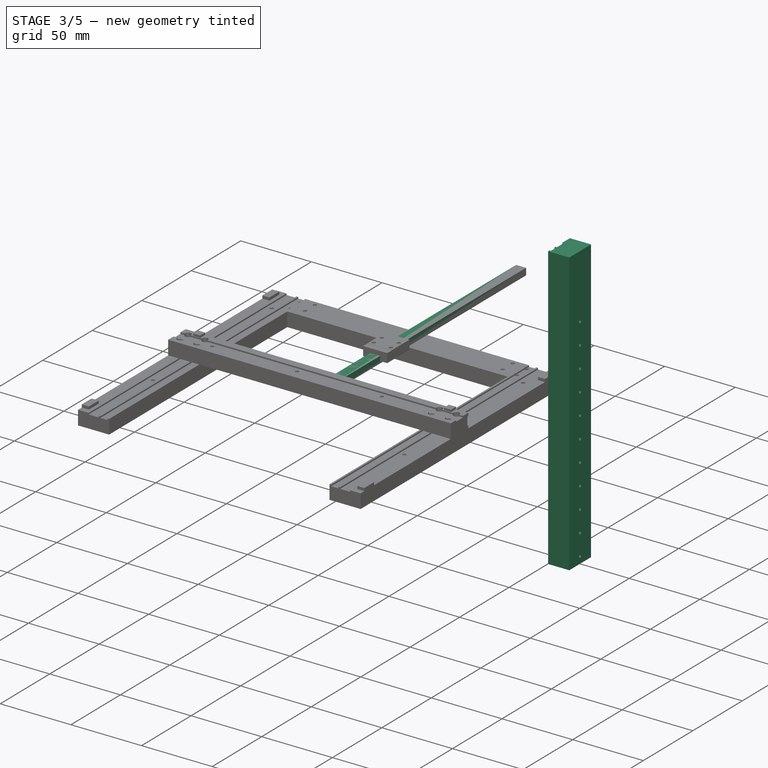
[diagram: stage 3 of 5 — iso view after this stage's code; geometry added in this stage tinted green]
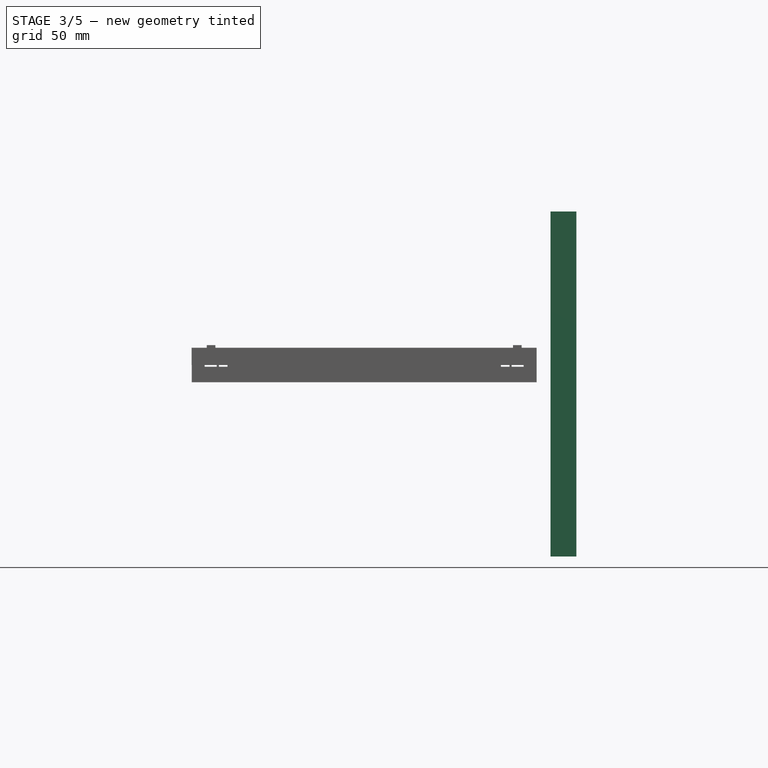
[diagram: stage 3 of 5 — front view after this stage's code; geometry added in this stage tinted green]
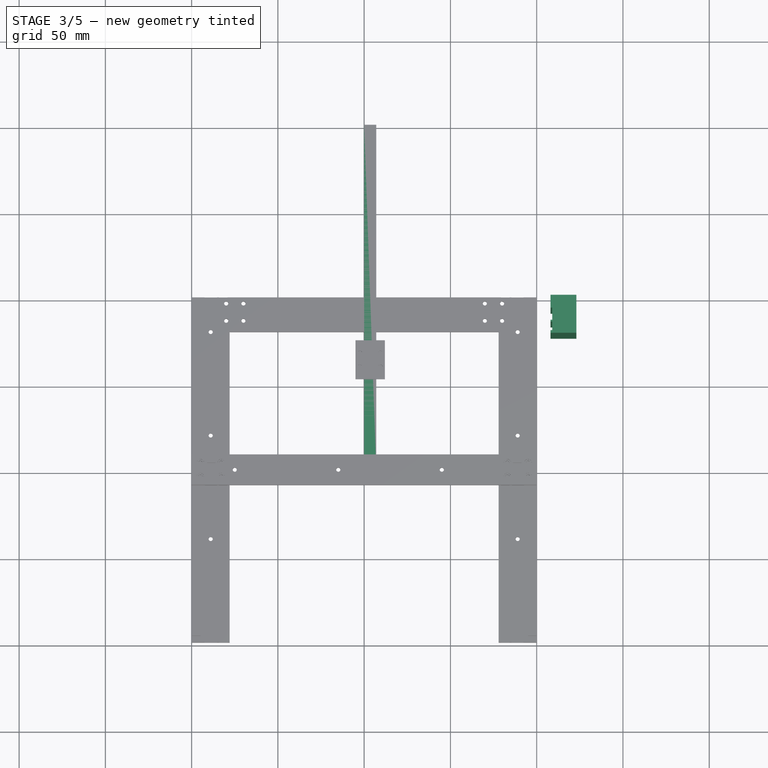
[diagram: stage 3 of 5 — top view after this stage's code; geometry added in this stage tinted green]
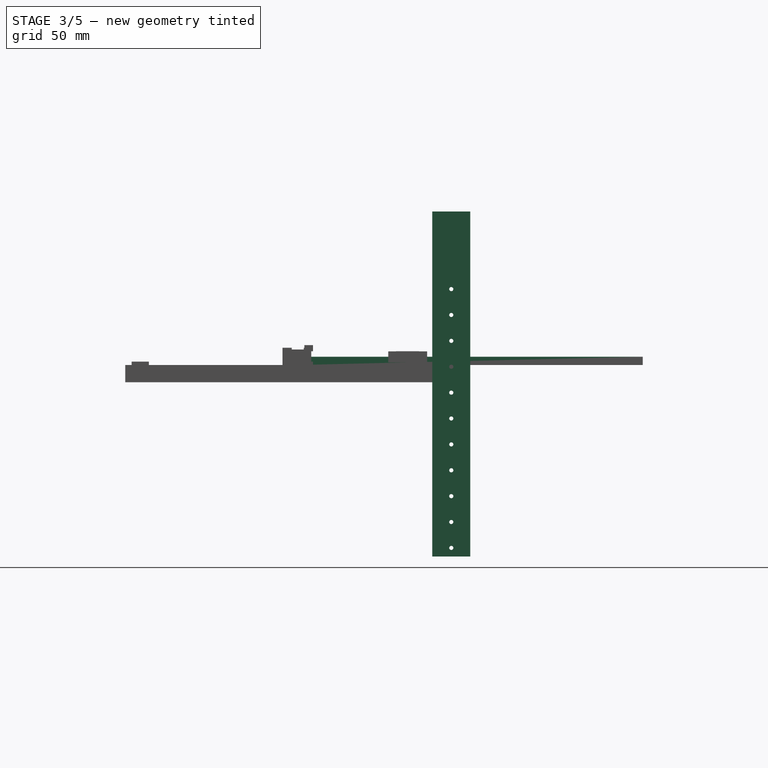
[diagram: stage 3 of 5 — right view after this stage's code; geometry added in this stage tinted green]
FEATURE [PartDesign::Body] Body001  label="YRailBody"
  Group = -> [Sketch003,Pad001,Sketch004,Pocket002,Sketch011,Pocket008,Sketch030,Pad012,Sketch031,Pocket018]
  Origin = -> Origin001
  Placement = pos=(0,0,-34) rot=(0,0,1;0rad)
  Tip = -> Pocket018
FEATURE [Spreadsheet::Sheet] Spreadsheet005  label="ZRail"
  cells = A3=Base_Width; B3(Base_Width)==<<MGN7-C>>.Rail_Bottom_To_Head_Face_Distance * 2 + <<YZConnector>>.Rail_Plate_Distance + Rail_Holder_Width * 2 - Rail_Holder_Inlet_Width * 2; A4=Base_Height; B4(Base_Height)=20; A5=Base_Depth; B5(Base_Depth)=120; A8=Rail_Holder_Width_Bottom; B8(Rail_Holder_Width)=15; A9=Rail_Holder_Width_Top; B9(Rail_Holder_Width_Top)=10; A10=Rail_Holder_Height; B10(Rail_Holder_Height)=200; A11=Rail_Holder_Depth; B11(Rail_Holder_Depth)=22; A12=Rail_Holder_Distance; B12(Rail_Holder_Distance)==<<MGN7-C>>.Rail_Bottom_To_Head_Face_Distance * 2 + <<YZConnector>>.Rail_Plate_Distance - Rail_Holder_Inlet_Width * 2; A13=Rail_Holder_Inlet_Width; B13(Rail_Holder_Inlet_Width)=1
FEATURE [Sketcher::SketchObject] Sketch034
  FullyConstrained = true
  MapMode = 5
  Placement = pos=(0,0,0) rot=(1,0,0;1.5708rad)
  Support = -> [XZ_Plane008]
  expr: Constraints[10] = <<MGN7-C>>.Rail_Height
  expr: Constraints[9] = <<MGN7-C>>.Rail_Width
  sketch-geometry (4):
    g0: LineSegment StartX=0 StartY=4.8 StartZ=0 EndX=7 EndY=4.8 EndZ=0
    g1: LineSegment StartX=7 StartY=4.8 StartZ=0 EndX=7 EndY=0 EndZ=0
    g2: LineSegment StartX=7 StartY=0 StartZ=0 EndX=0 EndY=0 EndZ=0
    g3: LineSegment StartX=0 StartY=0 StartZ=0 EndX=0 EndY=4.8 EndZ=0
  constraints (11):
    c: Coincident(g0,g1)
    c: Coincident(g1,g2)
    c: Coincident(g2,g3)
    c: Coincident(g3,g0)
    c: Horizontal(g0)
    c: Horizontal(g2)
    c: Vertical(g1)
    c: Vertical(g3)
    c: Coincident(g2,g-1)
    c: DistanceX(g2,g2) = 7
    c: DistanceY(g1,g1) = 4.8
FEATURE [PartDesign::Pad] Pad015
  Direction = (1,1,1)
  Length = 200
  Length2 = 100
  Placement = pos=(0,0,0) rot=(1,0,0;1.5708rad)
  Profile = -> Sketch034
  Reversed = true
  Type = 0
  expr: Length = <<MGN7-C>>.Rail_Length
FEATURE [PartDesign::Body] Body008  label="Rail_Z_1"
  Group = -> [Sketch034,Pad015,Sketch035,Pad016,Sketch036,Pocket019,Sketch037,Pocket020]
  Origin = -> Origin008
  Placement = pos=(-109,85.5,-111) rot=(0.57735,0.57735,0.57735;2.0944rad)
  Tip = -> Pocket020
FEATURE [Sketcher::SketchObject] Sketch039
  FullyConstrained = true
  MapMode = 5
  Placement = pos=(0,0,0) rot=(1,0,0;1.5708rad)
  Support = -> [XZ_Plane009]
  expr: Constraints[9] = <<MGN7-C>>.Rail_Width
  expr: Constraints[10] = <<MGN7-C>>.Rail_Height
  sketch-geometry (4):
    g0: LineSegment StartX=0 StartY=4.8 StartZ=0 EndX=7 EndY=4.8 EndZ=0
    g1: LineSegment StartX=7 StartY=4.8 StartZ=0 EndX=7 EndY=0 EndZ=0
    g2: LineSegment StartX=7 StartY=0 StartZ=0 EndX=0 EndY=0 EndZ=0
    g3: LineSegment StartX=0 StartY=0 StartZ=0 EndX=0 EndY=4.8 EndZ=0
  constraints (11):
    c: Coincident(g0,g1)
    c: Coincident(g1,g2)
    c: Coincident(g2,g3)
    c: Coincident(g3,g0)
    c: Horizontal(g0)
    c: Horizontal(g2)
    c: Vertical(g1)
    c: Vertical(g3)
    c: Coincident(g2,g-1)
    c: DistanceX(g2,g2) = 7
    c: DistanceY(g1,g1) = 4.8
FEATURE [PartDesign::Pad] Pad017
  Direction = (1,1,1)
  Length = 200
  Length2 = 100
  Placement = pos=(0,0,0) rot=(1,0,0;1.5708rad)
  Profile = -> Sketch039
  Reversed = true
  Type = 0
  expr: Length = <<MGN7-C>>.Rail_Length
FEATURE [Sketcher::SketchObject] Sketch038
  AttachmentOffset = pos=(0,0,-3.3) rot=(0,0,1;0rad)
  ExternalGeometry = -> [Pad017]
  FullyConstrained = true
  MapMode = 5
  Placement = pos=(0,3e-16,1.5) rot=(0,0,1;3.14159rad)
  Support = -> [Pad017]
  expr: Constraints[8] = <<MGN7-C>>.Offset1
  expr: Constraints[9] = <<MGN7-C>>.Head_Length
  expr: Constraints[10] = <<MGN7-C>>.Head_Width
  expr: .AttachmentOffset.Base.z = -<<MGN7-C>>.Rail_Height + <<MGN7-C>>.Rail_Bottom_To_Head_Bottom_Distance
  sketch-geometry (6):
    g0: LineSegment StartX=-12 StartY=-75 StartZ=0 EndX=5 EndY=-75 EndZ=0
    g1: LineSegment StartX=5 StartY=-75 StartZ=0 EndX=5 EndY=-52.5 EndZ=0
    g2: LineSegment StartX=5 StartY=-52.5 StartZ=0 EndX=-12 EndY=-52.5 EndZ=0
    g3: LineSegment StartX=-12 StartY=-52.5 StartZ=0 EndX=-12 EndY=-75 EndZ=0
    g4: GeomPoint X=-3.5 Y=-52.5 Z=0
    g5: LineSegment StartX=-3.5 StartY=0 StartZ=0 EndX=-3.5 EndY=-52.5 EndZ=0
  constraints (15):
    c: Coincident(g0,g1)
    c: Coincident(g1,g2)
    c: Coincident(g2,g3)
    c: Coincident(g3,g0)
    c: Horizontal(g0)
    c: Horizontal(g2)
    c: Vertical(g1)
    c: Vertical(g3)
    c: DistanceY(g0,g-1) = 75
    c: DistanceY(g1,g1) = 22.5
    c: DistanceX(g2,g2) = 17
    c: Symmetric(g2,g1,g4)
    c: Coincident(g5,g4)
    c: Vertical(g5)
    c: Symmetric(g-4,g-1,g5)
FEATURE [PartDesign::Pad] Pad018
  BaseFeature = -> Pad017
  Direction = (1,1,1)
  Length = 6.5
  Length2 = 100
  Placement = pos=(0,0,0) rot=(1,0,0;1.5708rad)
  Profile = -> Sketch038
  Type = 0
  expr: Length = <<MGN7-C>>.Head_Height
FEATURE [Sketcher::SketchObject] Sketch041
  ExternalGeometry = -> [Pad018]
  FullyConstrained = true
  MapMode = 5
  Placement = pos=(0,-1e-16,8) rot=(0,0,1;3.14159rad)
  Support = -> [Pad018]
  expr: Constraints[11] = <<MGN7-C>>.Head_Plate_Length
  sketch-geometry (13):
    g0: LineSegment StartX=-12 StartY=-57 StartZ=0 EndX=5 EndY=-57 EndZ=0
    g1: LineSegment StartX=5 StartY=-57 StartZ=0 EndX=5 EndY=-70.5 EndZ=0
    g2: LineSegment StartX=5 StartY=-70.5 StartZ=0 EndX=-12 EndY=-70.5 EndZ=0
    g3: LineSegment StartX=-12 StartY=-70.5 StartZ=0 EndX=-12 EndY=-57 EndZ=0
    g4: GeomPoint X=-12 Y=-63.75 Z=0
    g5: LineSegment StartX=-12 StartY=-52.5 StartZ=0 EndX=5 EndY=-52.5 EndZ=0
    g6: LineSegment StartX=5 StartY=-52.5 StartZ=0 EndX=5 EndY=-57 EndZ=0
    g7: LineSegment StartX=5 StartY=-57 StartZ=0 EndX=-12 EndY=-57 EndZ=0
    g8: LineSegment StartX=-12 StartY=-57 StartZ=0 EndX=-12 EndY=-52.5 EndZ=0
    g9: LineSegment StartX=-12 StartY=-70.5 StartZ=0 EndX=5 EndY=-70.5 EndZ=0
    g10: LineSegment StartX=5 StartY=-70.5 StartZ=0 EndX=5 EndY=-75 EndZ=0
    g11: LineSegment StartX=5 StartY=-75 StartZ=0 EndX=-12 EndY=-75 EndZ=0
    g12: LineSegment StartX=-12 StartY=-75 StartZ=0 EndX=-12 EndY=-70.5 EndZ=0
  constraints (32):
    c: Coincident(g0,g1)
    c: Coincident(g1,g2)
    c: Coincident(g2,g3)
    c: Coincident(g3,g0)
    c: Horizontal(g0)
    c: Horizontal(g2)
    c: Vertical(g1)
    c: Vertical(g3)
    c: PointOnObject(g0,g-5)
    c: Symmetric(g-4,g-3,g4)
    c: Symmetric(g0,g2,g4)
    c: DistanceY(g3,g3) = 13.5
    c: Coincident(g5,g6)
    c: Coincident(g6,g7)
    c: Coincident(g7,g8)
    c: Coincident(g8,g5)
    c: Horizontal(g5)
    c: Horizontal(g7)
    c: Vertical(g6)
    c: Vertical(g8)
    c: Coincident(g5,g-4)
    c: Coincident(g6,g0)
    c: Coincident(g9,g10)
    c: Coincident(g10,g11)
    c: Coincident(g11,g12)
    c: Coincident(g12,g9)
    c: Horizontal(g9)
    c: Horizontal(g11)
    c: Vertical(g10)
    c: Vertical(g12)
    c: Coincident(g9,g2)
    c: Coincident(g10,g-5)
FEATURE [PartDesign::Pocket] Pocket021
  BaseFeature = -> Pad018
  Length = 0.1
  Length2 = 100
  Placement = pos=(0,0,0) rot=(1,0,0;1.5708rad)
  Profile = -> Sketch041
  Type = 0
  expr: Length = <<MGN7-C>>.Head_Plate_Step_Down
FEATURE [Sketcher::SketchObject] Sketch040
  ExternalGeometry = -> [Pocket021]
  FullyConstrained = true
  MapMode = 5
  Placement = pos=(0,-1e-16,8) rot=(0,0,1;3.14159rad)
  Support = -> [Pocket021]
  expr: Constraints[19] = <<MGN7-C>>.Head_Screw_Placement_Width
  expr: Constraints[18] = <<MGN7-C>>.Head_Screw_Placement_Length
  expr: Constraints[16] = <<MGN7-C>>.Head_Screw_Body_Diameter / 2
  expr: Constraints[15] = <<MGN7-C>>.Head_Screw_Body_Diameter / 2
  expr: Constraints[17] = <<MGN7-C>>.Head_Screw_Body_Diameter / 2
  expr: Constraints[14] = <<MGN7-C>>.Head_Screw_Body_Diameter / 2
  sketch-geometry (9):
    g0: LineSegment StartX=-9.5 StartY=-59.75 StartZ=0 EndX=2.5 EndY=-59.75 EndZ=0
    g1: LineSegment StartX=2.5 StartY=-59.75 StartZ=0 EndX=2.5 EndY=-67.75 EndZ=0
    g2: LineSegment StartX=2.5 StartY=-67.75 StartZ=0 EndX=-9.5 EndY=-67.75 EndZ=0
    g3: LineSegment StartX=-9.5 StartY=-67.75 StartZ=0 EndX=-9.5 EndY=-59.75 EndZ=0
    g4: GeomPoint X=-3.5 Y=-63.75 Z=0
    g5: Circle CenterX=-9.5 CenterY=-59.75 CenterZ=0 NormalX=0 NormalY=0 NormalZ=1 AngleXU=0 Radius=1.2
    g6: Circle CenterX=2.5 CenterY=-59.75 CenterZ=0 NormalX=0 NormalY=0 NormalZ=1 AngleXU=0 Radius=1.2
    g7: Circle CenterX=2.5 CenterY=-67.75 CenterZ=0 NormalX=0 NormalY=0 NormalZ=1 AngleXU=0 Radius=1.2
    g8: Circle CenterX=-9.5 CenterY=-67.75 CenterZ=0 NormalX=0 NormalY=0 NormalZ=1 AngleXU=0 Radius=1.2
  constraints (20):
    c: Coincident(g0,g1)
    c: Coincident(g1,g2)
    c: Coincident(g2,g3)
    c: Coincident(g3,g0)
    c: Horizontal(g0)
    c: Horizontal(g2)
    c: Vertical(g1)
    c: Vertical(g3)
    c: Symmetric(g-4,g-3,g4)
    c: Symmetric(g0,g1,g4)
    c: Coincident(g5,g0)
    c: Coincident(g6,g0)
    c: Coincident(g7,g1)
    c: Coincident(g8,g2)
    c: Radius(g5) = 1.2
    c: Radius(g6) = 1.2
    c: Radius(g7) = 1.2
    c: Radius(g8) = 1.2
    c: DistanceY(g3,g3) = 8
    c: DistanceX(g0,g0) = 12
FEATURE [PartDesign::Pocket] Pocket022
  BaseFeature = -> Pocket021
  Length = 2.5
  Length2 = 100
  Placement = pos=(0,0,0) rot=(1,0,0;1.5708rad)
  Profile = -> Sketch040
  Type = 0
  expr: Length = <<MGN7-C>>.Head_Screw_Hole_Height
FEATURE [Sketcher::SketchObject] Sketch042
  FullyConstrained = true
  MapMode = 5
  Support = -> [XY_Plane010]
  expr: Constraints[36] = <<GeneralProperties>>.Pot_Edge_To_Rail_Distance
  expr: Constraints[34] = <<GeneralProperties>>.Pot_Width
  expr: Constraints[35] = <<GeneralProperties>>.Pot_Height
  expr: Constraints[24] = <<ZRail>>.Rail_Holder_Depth
  expr: Constraints[22] = <<ZRail>>.Rail_Holder_Width
  expr: Constraints[21] = <<MGN7-C>>.Rail_Width
  expr: Constraints[20] = <<ZRail>>.Rail_Holder_Inlet_Width
  sketch-geometry (15):
    g0: LineSegment StartX=0 StartY=22 StartZ=0 EndX=15 EndY=22 EndZ=0
    g1: LineSegment StartX=15 StartY=22 StartZ=0 EndX=15 EndY=0 EndZ=0
    g2: LineSegment StartX=15 StartY=0 StartZ=0 EndX=0 EndY=0 EndZ=0
    g3: LineSegment StartX=0 StartY=0 StartZ=0 EndX=0 EndY=22 EndZ=0
    g4: LineSegment StartX=15 StartY=22 StartZ=0 EndX=15 EndY=14.5 EndZ=0
    g5: LineSegment StartX=15 StartY=0 StartZ=0 EndX=15 EndY=7.5 EndZ=0
    g6: LineSegment StartX=15 StartY=7.5 StartZ=0 EndX=14 EndY=7.5 EndZ=0
    g7: LineSegment StartX=14 StartY=7.5 StartZ=0 EndX=14 EndY=14.5 EndZ=0
    g8: LineSegment StartX=14 StartY=14.5 StartZ=0 EndX=15 EndY=14.5 EndZ=0
    g9: GeomPoint X=15 Y=11 Z=0
    g10: LineSegment StartX=15 StartY=7.5 StartZ=0 EndX=15 EndY=6.5 EndZ=0
    g11: LineSegment StartX=15 StartY=6.5 StartZ=0 EndX=14 EndY=6.5 EndZ=0
    g12: LineSegment StartX=14 StartY=6.5 StartZ=0 EndX=14 EndY=1.5 EndZ=0
    g13: LineSegment StartX=14 StartY=1.5 StartZ=0 EndX=15 EndY=1.5 EndZ=0
    g14: LineSegment StartX=15 StartY=1.5 StartZ=0 EndX=15 EndY=0 EndZ=0
  constraints (39):
    c: Coincident(g0,g1)
    c: Coincident(g1,g2)
    c: Coincident(g2,g3)
    c: Coincident(g3,g0)
    c: Horizontal(g0)
    c: Horizontal(g2)
    c: Vertical(g1)
    c: Vertical(g3)
    c: Coincident(g4,g0)
    c: PointOnObject(g4,g1)
    c: Coincident(g5,g2)
    c: Coincident(g6,g5)
    c: Coincident(g7,g6)
    c: Coincident(g8,g7)
    c: Coincident(g8,g4)
    c: Horizontal(g8)
    c: Horizontal(g6)
    c: Vertical(g7)
    c: Symmetric(g0,g2,g9)
    c: Symmetric(g4,g5,g9)
    c: DistanceX(g8,g8) = 1
    c: DistanceY(g7,g7) = 7
    c: DistanceX(g0,g0) = 15
    c: Coincident(g2,g-1)
    c: DistanceY(g3,g3) = 22
    c: Coincident(g10,g6)
    c: PointOnObject(g10,g1)
    c: Coincident(g11,g10)
    c: Horizontal(g11)
    c: Coincident(g12,g11)
    c: PointOnObject(g13,g1)
    c: Coincident(g14,g13)
    c: Coincident(g14,g2)
    c: Horizontal(g13)
    c: DistanceY(g12,g12) = 5
    c: DistanceX(g11,g11) = 1
    c: DistanceY(g10,g10) = 1
    c: Coincident(g12,g13)
    c: Vertical(g12)
FEATURE [PartDesign::Pad] Pad019
  Direction = (1,1,1)
  Length = 200
  Length2 = 100
  Profile = -> Sketch042
  Type = 0
  expr: Length = <<GeneralProperties>>.Pot_Depth
FEATURE [Sketcher::SketchObject] Sketch043
  ExternalGeometry = -> [Pad019]
  FullyConstrained = true
  MapMode = 5
  Placement = pos=(0,0,0) rot=(0.57735,-0.57735,-0.57735;2.0944rad)
  Support = -> [Pad019]
  expr: Constraints[31] = <<MGN7-C>>.Rail_Screw_To_Screw_Distance
  expr: Constraints[30] = <<MGN7-C>>.Rail_Screw_To_Screw_Distance
  expr: Constraints[24] = <<MGN7-C>>.Rail_Screw_To_Screw_Distance
  expr: Constraints[23] = <<MGN7-C>>.Rail_Screw_To_Screw_Distance
  expr: Constraints[34] = <<MGN7-C>>.Rail_Screw_Body_Diameter / 2
  expr: Constraints[18] = <<MGN7-C>>.Rail_Screw_To_Screw_Distance
  expr: Constraints[20] = <<MGN7-C>>.Rail_Screw_To_Screw_Distance
  expr: Constraints[33] = <<MGN7-C>>.Rail_Screw_Body_Diameter / 2
  expr: Constraints[15] = <<MGN7-C>>.Rail_Screw_To_Screw_Distance
  expr: Constraints[14] = <<MGN7-C>>.Rail_Screw_To_Screw_Distance
  expr: Constraints[7] = <<MGN7-C>>.Rail_Screw_Body_Diameter / 2
  expr: Constraints[13] = <<MGN7-C>>.Rail_Screw_To_Screw_Distance
  expr: Constraints[6] = <<MGN7-C>>.Rail_Screw_Body_Diameter / 2
  expr: Constraints[5] = <<MGN7-C>>.Rail_Screw_Body_Diameter / 2
  expr: Constraints[3] = <<MGN7-C>>.Rail_End_To_First_Screw_Distance
  expr: Constraints[32] = <<MGN7-C>>.Rail_Screw_Body_Diameter / 2
  expr: Constraints[29] = <<MGN7-C>>.Rail_Screw_To_Screw_Distance
  expr: Constraints[4] = <<MGN7-C>>.Rail_Screw_Body_Diameter / 2
  sketch-geometry (12):
    g0: Circle CenterX=-11 CenterY=5 CenterZ=0 NormalX=0 NormalY=0 NormalZ=1 AngleXU=0 Radius=1.2
    g1: Circle CenterX=-11 CenterY=35 CenterZ=0 NormalX=0 NormalY=0 NormalZ=1 AngleXU=0 Radius=1.2
    g2: Circle CenterX=-11 CenterY=65 CenterZ=0 NormalX=0 NormalY=0 NormalZ=1 AngleXU=0 Radius=1.2
    g3: Circle CenterX=-11 CenterY=110 CenterZ=0 NormalX=0 NormalY=0 NormalZ=1 AngleXU=0 Radius=1.2
    g4: LineSegment StartX=-11 StartY=200 StartZ=0 EndX=-11 EndY=0 EndZ=0
    g5: Circle CenterX=-11 CenterY=95 CenterZ=0 NormalX=0 NormalY=0 NormalZ=1 AngleXU=0 Radius=1.2
    g6: Circle CenterX=-11 CenterY=80 CenterZ=0 NormalX=0 NormalY=0 NormalZ=1 AngleXU=0 Radius=1.2
    g7: Circle CenterX=-11 CenterY=50 CenterZ=0 NormalX=0 NormalY=0 NormalZ=1 AngleXU=0 Radius=1.2
    g8: Circle CenterX=-11 CenterY=20 CenterZ=0 NormalX=0 NormalY=0 NormalZ=1 AngleXU=0 Radius=1.2
    g9: Circle CenterX=-11 CenterY=140 CenterZ=0 NormalX=0 NormalY=0 NormalZ=1 AngleXU=0 Radius=1.2
    g10: Circle CenterX=-11 CenterY=125 CenterZ=0 NormalX=0 NormalY=0 NormalZ=1 AngleXU=0 Radius=1.2
    g11: Circle CenterX=-11 CenterY=155 CenterZ=0 NormalX=0 NormalY=0 NormalZ=1 AngleXU=0 Radius=1.2
  constraints (36):
    c: Vertical(g4)
    c: Symmetric(g-4,g-1,g4)
    c: PointOnObject(g0,g4)
    c: DistanceY(g-1,g0) = 5
    c: Radius(g0) = 1.2
    c: Radius(g1) = 1.2
    c: Radius(g2) = 1.2
    c: Radius(g3) = 1.2
    c: Equal(g0,g5) = 1.2
    c: Equal(g1,g6) = 1.2
    c: Equal(g2,g7) = 1.2
    c: Equal(g3,g8) = 1.2
    c: PointOnObject(g8,g4)
    c: DistanceY(g0,g8) = 15
    c: DistanceY(g8,g1) = 15
    c: DistanceY(g1,g7) = 15
    c: PointOnObject(g1,g4)
    c: PointOnObject(g7,g4)
    c: DistanceY(g7,g2) = 15
    c: PointOnObject(g2,g4)
    c: DistanceY(g2,g6) = 15
    c: PointOnObject(g6,g4)
    c: PointOnObject(g5,g4)
    c: DistanceY(g6,g5) = 15
    c: DistanceY(g5,g3) = 15
    c: PointOnObject(g3,g4)
    c: PointOnObject(g9,g4)
    c: PointOnObject(g10,g4)
    c: PointOnObject(g11,g4)
    c: DistanceY(g9,g11) = 15
    c: DistanceY(g10,g9) = 15
    c: DistanceY(g3,g10) = 15
    c: Radius(g10) = 1.2
    c: Radius(g9) = 1.2
    c: Radius(g11) = 1.2
    c: DistanceY(g-3,g4) = 0
FEATURE [PartDesign::Pocket] Pocket023
  BaseFeature = -> Pad019
  Length = 15
  Length2 = 100
  Profile = -> Sketch043
  Type = 0
  expr: Length = <<ZRail>>.Rail_Holder_Width
FEATURE [PartDesign::Body] Body010  label="ZRailBody_1"
  Group = -> [Sketch042,Pad019,Sketch043,Pocket023]
  Origin = -> Origin010
  Placement = pos=(-123,78,-111) rot=(0,0,1;0rad)
  Tip = -> Pocket023
FEATURE [Part::Mirroring] Part__Mirroring001  label="ZRailBody_1 (Mirror #2)"
  Base = (0,0,0)
  Normal = (1,0,0)
  Source = -> Body010
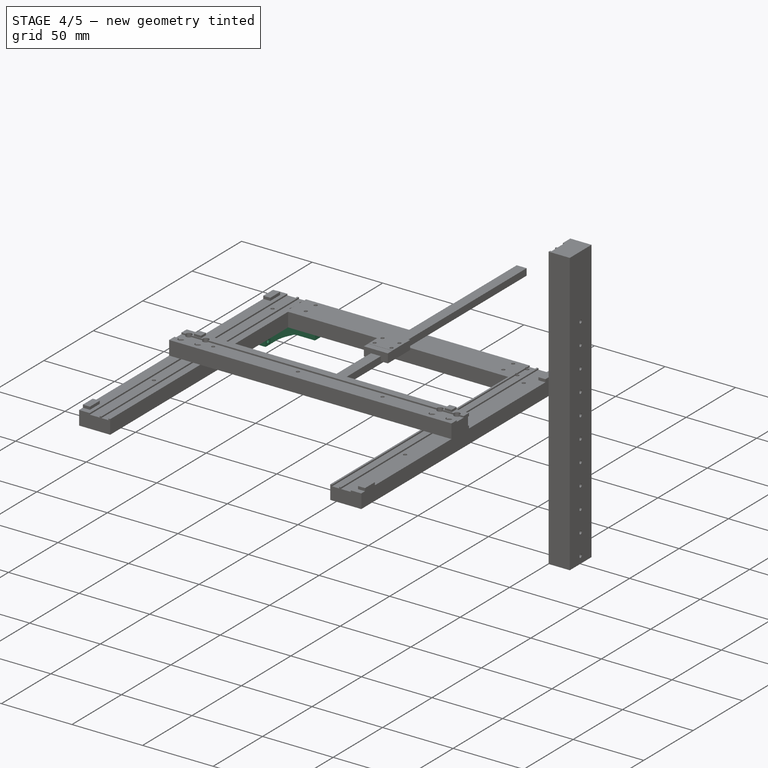
[diagram: stage 4 of 5 — iso view after this stage's code; geometry added in this stage tinted green]
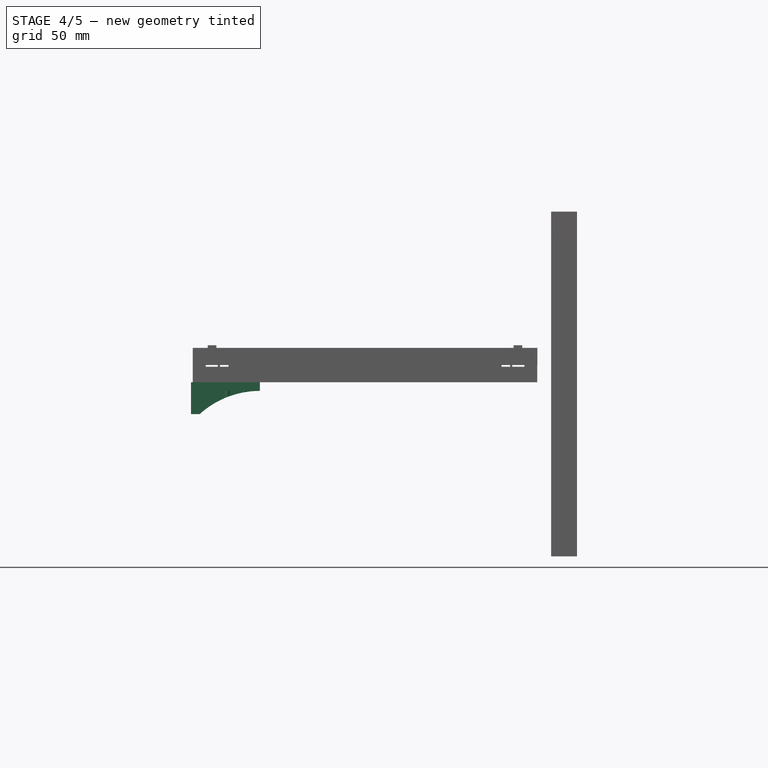
[diagram: stage 4 of 5 — front view after this stage's code; geometry added in this stage tinted green]
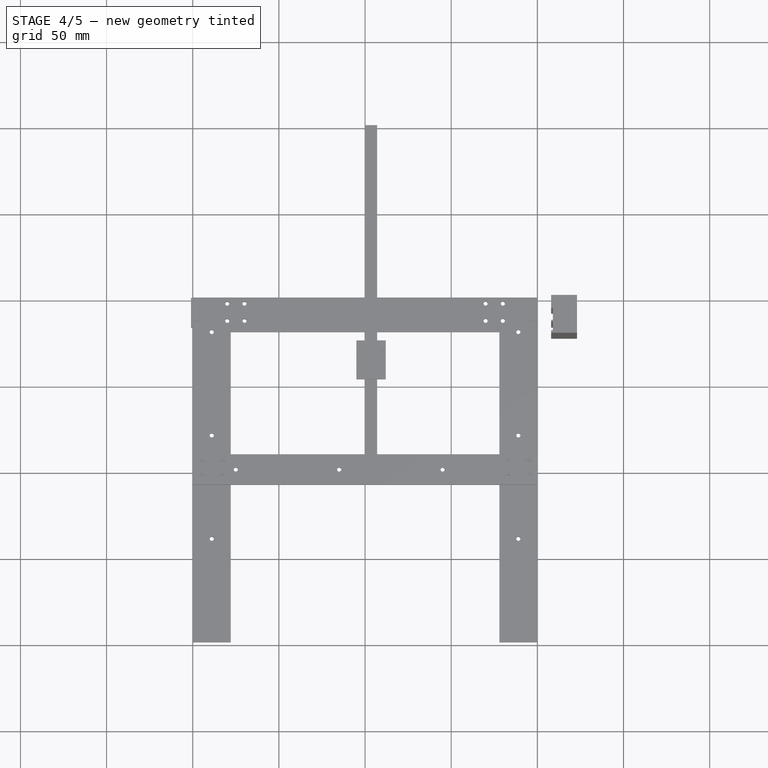
[diagram: stage 4 of 5 — top view after this stage's code; geometry added in this stage tinted green]
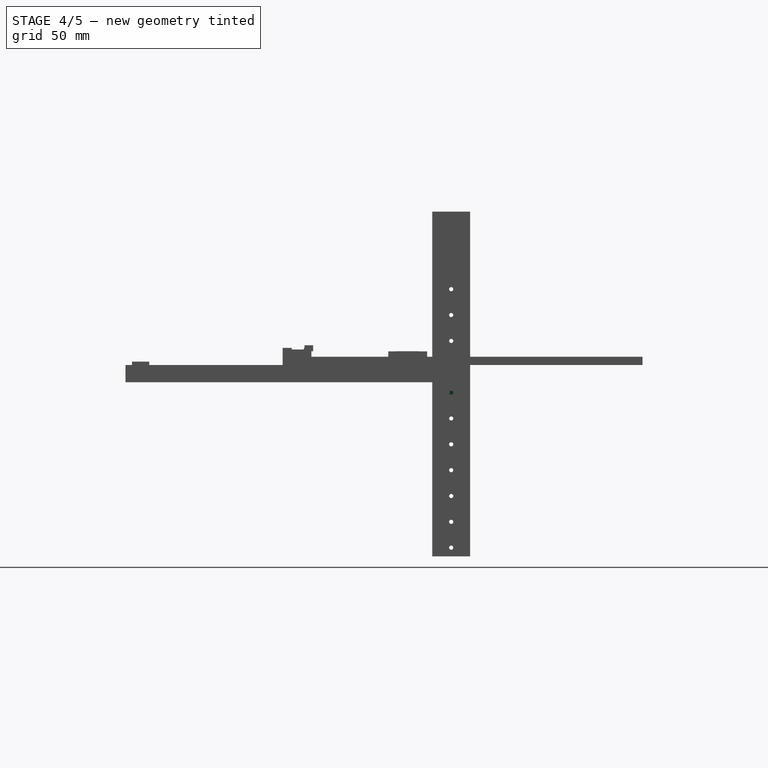
[diagram: stage 4 of 5 — right view after this stage's code; geometry added in this stage tinted green]
FEATURE [Spreadsheet::Sheet] Spreadsheet003  label="YZConnector"
  cells = A4=Screw_Type; B4(Screw_Type)==<<MGN7-C>>.Head_Screw_Type; A5=Screw_Body_Diameter; B5(Screw_Body_Diameter)==<<MGN7-C>>.Head_Screw_Body_Diameter; A6=Screw_Head_Diameter; B6(Screw_Head_Diameter)==<<MGN7-C>>.Head_Screw_Head_Diameter; A8=YRail_Connector_Screw_Distance; B8(YRail_Connector_Screw_Distance)=20; A12=ZRail_Connector_Screw_Distance; B12(ZRail_Connector_Screw_Distance)=; A13=ZRail_Connector_Screw_Inlet; B13(ZRail_Connector_Screw_Inlet)=; A15=YRail_Overhang; B15(YRail_Overhang)==(<<XRail>>.Holder_Width - <<YRail>>.Body_Width) / 2; A16=YRail_Overhang_Additional_Room; B16(YRail_Overhang_Additional_Room)=1; A17=YRail_Total_Overhang; B17(YRail_Total_Overhang)==YRail_Overhang + YRail_Overhang_Additional_Room; A18=YRail_First_Screw_Offset; B18(YRail_First_Screw_Offset)=20; A19=YRail_Screw_Width_Spacing; B19(YRail_Screw_Width_Spacing)=10; A20=YRail_Screw_Depth_Spacing; B20(YRail_Screw_Depth_Spacing)=10; A22=Rail_Plate_Distance; B22(Rail_Plate_Distance)==YRail_Total_Overhang * 2 + <<YRail>>.Body_Width; A26=Body_Width; B26(Body_Width)=40; A27=Body_Height; B27(Body_Height)==<<MGN7-C>>.Head_Plate_Length + Contact_Plate_Height_Offset; A28=Body_Depth; B28(Body_Depth)==<<MGN7-C>>.Head_Width; A29=Contact_Plate_Height_Offset; B29(Contact_Plate_Height_Offset)=5; A31=HProfile_Start_Width; B31(HProfile_Start_Width)=5; A32=HProfile_Start_Height; B32(HProfile_Start_Height)=5; A34=HProfile_Cut_In_Depth; B34(HProfile_Cut_In_Depth)==<<MGN7-C>>.Head_Screw_Head_Diameter * 1.2
FEATURE [PartDesign::ShapeBinder] ReferencePocket002
  Placement = pos=(0,0,-10) rot=(0,0,1;0rad)
  Support = -> [Pocket002]
  TraceSupport = false
FEATURE [Sketcher::SketchObject] Sketch005
  ExternalGeometry = -> [ReferencePocket002]
  FullyConstrained = true
  MapMode = 5
  Placement = pos=(0,0,-10) rot=(1,0,0;3.14159rad)
  Support = -> [ReferencePocket002]
  expr: Constraints[12] = <<YZConnector>>.Body_Depth
  expr: Constraints[7] = <<YZConnector>>.Body_Width
  expr: Constraints[6] = Spreadsheet003.YRail_Total_Overhang
  sketch-geometry (5):
    g0: LineSegment StartX=-61 StartY=-83 StartZ=0 EndX=-61 EndY=-100 EndZ=0
    g1: LineSegment StartX=-61 StartY=-100 StartZ=0 EndX=-101 EndY=-100 EndZ=0
    g2: LineSegment StartX=-101 StartY=-100 StartZ=0 EndX=-101 EndY=-83 EndZ=0
    g3: LineSegment StartX=-101 StartY=-83 StartZ=0 EndX=-61 EndY=-83 EndZ=0
    g4: LineSegment StartX=-101 StartY=-83 StartZ=0 EndX=-61 EndY=-83 EndZ=0
  constraints (14):
    c: Coincident(g0,g1)
    c: Coincident(g1,g2)
    c: Horizontal(g1)
    c: Vertical(g0)
    c: Vertical(g2)
    c: PointOnObject(g0,g-4)
    c: DistanceX(g1,g-5) = 1.04
    c: DistanceX(g2,g0) = 40
    c: Coincident(g3,g2)
    c: Horizontal(g3)
    c: Coincident(g4,g2)
    c: Coincident(g4,g0)
    c: DistanceY(g2,g2) = 17
    c: Coincident(g0,g3)
FEATURE [PartDesign::Pad] Pad002
  Direction = (1,1,1)
  Length = 18.5
  Length2 = 100
  Placement = pos=(0,0,-10) rot=(0,0,1;0rad)
  Profile = -> Sketch005
  Type = 0
  expr: Length = <<YZConnector>>.Body_Height
FEATURE [Sketcher::SketchObject] Sketch006
  ExternalGeometry = -> [Pad002]
  FullyConstrained = true
  MapMode = 5
  Placement = pos=(0,83,-10) rot=(1,0,0;1.5708rad)
  Support = -> [Pad002]
  expr: Constraints[6] = 0
  expr: Constraints[3] = <<YZConnector>>.HProfile_Start_Width
  expr: Constraints[2] = <<YZConnector>>.HProfile_Start_Height
  sketch-geometry (5):
    g0: GeomPoint X=-96 Y=-18.5 Z=0
    g1: GeomPoint X=-61 Y=-5 Z=0
    g2: ArcOfCircle CenterX=-61 CenterY=-57.1204 CenterZ=0 NormalX=0 NormalY=0 NormalZ=1 AngleXU=0 Radius=52.1204 StartAngle=1.5708 EndAngle=2.30706
    g3: LineSegment StartX=-61 StartY=-5 StartZ=0 EndX=-61 EndY=-18.5 EndZ=0
    g4: LineSegment StartX=-96 StartY=-18.5 StartZ=0 EndX=-61 EndY=-18.5 EndZ=0
  constraints (11):
    c: PointOnObject(g0,g-3)
    c: PointOnObject(g1,g-4)
    c: DistanceY(g1,g-4) = 5
    c: DistanceX(g-3,g0) = 5
    c: Coincident(g2,g1)
    c: Coincident(g2,g0)
    c: DistanceX(g2,g2) = 0
    c: Coincident(g3,g2)
    c: Coincident(g3,g-4)
    c: Coincident(g4,g2)
    c: Coincident(g4,g3)
FEATURE [PartDesign::Pocket] Pocket003
  BaseFeature = -> Pad002
  Length = 17
  Length2 = 100
  Placement = pos=(0,0,-10) rot=(0,0,1;0rad)
  Profile = -> Sketch006
  Type = 0
  expr: Length = <<YZConnector>>.Body_Depth
FEATURE [Sketcher::SketchObject] Sketch007  label="HolesForMounting"
  ExternalGeometry = -> [Pocket003]
  FullyConstrained = true
  MapMode = 5
  Placement = pos=(-101,0,-10) rot=(0.57735,-0.57735,-0.57735;2.0944rad)
  Support = -> [Pocket003]
  expr: Constraints[29] = <<MGN7-C>>.Head_Screw_Body_Diameter / 2
  expr: Constraints[26] = <<MGN7-C>>.Head_Screw_Body_Diameter / 2
  expr: Constraints[28] = <<MGN7-C>>.Head_Screw_Body_Diameter / 2
  expr: Constraints[25] = <<MGN7-C>>.Head_Screw_Placement_Width
  expr: Constraints[24] = <<MGN7-C>>.Head_Screw_Placement_Length
  expr: Constraints[27] = <<MGN7-C>>.Head_Screw_Body_Diameter / 2
  expr: Constraints[9] = <<MGN7-C>>.Head_Plate_Length
  sketch-geometry (13):
    g0: LineSegment StartX=-100 StartY=-5 StartZ=0 EndX=-83 EndY=-5 EndZ=0
    g1: LineSegment StartX=-83 StartY=-5 StartZ=0 EndX=-83 EndY=-18.5 EndZ=0
    g2: LineSegment StartX=-83 StartY=-18.5 StartZ=0 EndX=-100 EndY=-18.5 EndZ=0
    g3: LineSegment StartX=-100 StartY=-18.5 StartZ=0 EndX=-100 EndY=-5 EndZ=0
    g4: Circle CenterX=-97.5 CenterY=-7.75 CenterZ=0 NormalX=0 NormalY=0 NormalZ=1 AngleXU=0 Radius=1.2
    g5: Circle CenterX=-85.5 CenterY=-7.75 CenterZ=0 NormalX=0 NormalY=0 NormalZ=1 AngleXU=0 Radius=1.2
    g6: Circle CenterX=-97.5 CenterY=-15.75 CenterZ=0 NormalX=0 NormalY=0 NormalZ=1 AngleXU=0 Radius=1.2
    g7: Circle CenterX=-85.5 CenterY=-15.75 CenterZ=0 NormalX=0 NormalY=0 NormalZ=1 AngleXU=0 Radius=1.2
    g8: GeomPoint X=-91.5 Y=-11.75 Z=0
    g9: LineSegment StartX=-97.5 StartY=-7.75 StartZ=0 EndX=-85.5 EndY=-7.75 EndZ=0
    g10: LineSegment StartX=-85.5 StartY=-7.75 StartZ=0 EndX=-85.5 EndY=-15.75 EndZ=0
    g11: LineSegment StartX=-85.5 StartY=-15.75 StartZ=0 EndX=-97.5 EndY=-15.75 EndZ=0
    g12: LineSegment StartX=-97.5 StartY=-15.75 StartZ=0 EndX=-97.5 EndY=-7.75 EndZ=0
  constraints (30):
    c: Coincident(g0,g1)
    c: Coincident(g1,g2)
    c: Coincident(g2,g3)
    c: Coincident(g3,g0)
    c: Horizontal(g0)
    c: Vertical(g1)
    c: Vertical(g3)
    c: Coincident(g1,g-4)
    c: Coincident(g2,g-4)
    c: DistanceY(g1,g1) = 13.5
    c: Symmetric(g0,g2,g8)
    c: Symmetric(g5,g6,g8)
    c: Coincident(g9,g10)
    c: Coincident(g10,g11)
    c: Coincident(g11,g12)
    c: Coincident(g12,g9)
    c: Horizontal(g9)
    c: Horizontal(g11)
    c: Vertical(g10)
    c: Vertical(g12)
    c: Coincident(g9,g4)
    c: Coincident(g10,g7)
    c: Coincident(g5,g9)
    c: Coincident(g6,g11)
    c: DistanceY(g10,g10) = 8
    c: DistanceX(g9,g9) = 12
    c: Radius(g5) = 1.2
    c: Radius(g7) = 1.2
    c: Radius(g6) = 1.2
    c: Radius(g4) = 1.2
FEATURE [PartDesign::Pocket] Pocket004
  BaseFeature = -> Pocket003
  Length = 40
  Length2 = 100
  Placement = pos=(0,0,-10) rot=(0,0,1;0rad)
  Profile = -> Sketch007
  Type = 0
  expr: Length = <<YZConnector>>.Body_Width
FEATURE [Sketcher::SketchObject] Sketch008
  ExternalGeometry = -> [Pocket004]
  FullyConstrained = true
  MapMode = 5
  Placement = pos=(0,0,-28.5) rot=(1,0,0;3.14159rad)
  Support = -> [Pocket004]
  expr: Constraints[25] = <<YZConnector>>.HProfile_Cut_In_Depth
  expr: Constraints[27] = 0
  expr: Constraints[22] = 0
  expr: Constraints[18] = <<YZConnector>>.Body_Width
  sketch-geometry (11):
    g0: LineSegment StartX=-96 StartY=-83 StartZ=0 EndX=-61 EndY=-83 EndZ=0
    g1: LineSegment StartX=-61 StartY=-88.04 StartZ=0 EndX=-96 EndY=-88.04 EndZ=0
    g2: LineSegment StartX=-96 StartY=-88.04 StartZ=0 EndX=-96 EndY=-83 EndZ=0
    g3: LineSegment StartX=-96 StartY=-94.96 StartZ=0 EndX=-61 EndY=-94.96 EndZ=0
    g4: LineSegment StartX=-61 StartY=-100 StartZ=0 EndX=-96 EndY=-100 EndZ=0
    g5: LineSegment StartX=-96 StartY=-100 StartZ=0 EndX=-96 EndY=-94.96 EndZ=0
    g6: LineSegment StartX=-61 StartY=-83 StartZ=0 EndX=-51 EndY=-83 EndZ=0
    g7: LineSegment StartX=-51 StartY=-83 StartZ=0 EndX=-51 EndY=-100 EndZ=0
    g8: LineSegment StartX=-51 StartY=-100 StartZ=0 EndX=-61 EndY=-100 EndZ=0
    g9: LineSegment StartX=-61 StartY=-88.04 StartZ=0 EndX=-61 EndY=-94.96 EndZ=0
    g10: GeomPoint X=-96 Y=-91.5 Z=0
  constraints (28):
    c: Coincident(g1,g2)
    c: Coincident(g2,g0)
    c: Horizontal(g0)
    c: Horizontal(g1)
    c: Vertical(g2)
    c: Coincident(g0,g-4)
    c: Coincident(g4,g5)
    c: Coincident(g5,g3)
    c: Horizontal(g3)
    c: Horizontal(g4)
    c: Coincident(g7,g8)
    c: Horizontal(g6)
    c: Horizontal(g8)
    c: Vertical(g7)
    c: Coincident(g6,g0)
    c: Coincident(g9,g3)
    c: Coincident(g1,g9)
    c: Vertical(g9)
    c: DistanceX(g-5,g0) = 40
    c: DistanceX(g6,g6) = 10
    c: Coincident(g4,g8)
    c: Coincident(g4,g-6)
    c: DistanceX(g1,g0) = 0
    c: Symmetric(g3,g1,g10)
    c: Symmetric(g0,g4,g10)
    c: DistanceY(g2,g2) = 5.04
    c: Coincident(g6,g7)
    c: DistanceX(g4,g0) = 0
FEATURE [PartDesign::Pocket] Pocket005
  BaseFeature = -> Pocket004
  Length = 13.5
  Length2 = 100
  Placement = pos=(0,0,-10) rot=(0,0,1;0rad)
  Profile = -> Sketch008
  Type = 0
  expr: Length = <<YZConnector>>.Body_Height - <<YZConnector>>.HProfile_Start_Height
FEATURE [Sketcher::SketchObject] Sketch009
  ExternalGeometry = -> [Pocket005]
  FullyConstrained = true
  MapMode = 5
  Placement = pos=(0,0,-10) rot=(0,0,1;0rad)
  Support = -> [Pocket005]
  expr: Constraints[34] = 0
  expr: Constraints[27] = <<YZConnector>>.Screw_Body_Diameter / 2
  expr: Constraints[29] = Spreadsheet003.YRail_Screw_Depth_Spacing
  expr: Constraints[26] = <<YZConnector>>.Screw_Body_Diameter / 2
  expr: Constraints[30] = Spreadsheet003.YRail_Screw_Width_Spacing
  expr: Constraints[28] = <<YZConnector>>.Screw_Body_Diameter / 2
  expr: Constraints[25] = <<YZConnector>>.Screw_Body_Diameter / 2
  expr: Constraints[24] = Spreadsheet003.YRail_First_Screw_Offset
  expr: Constraints[10] = Spreadsheet003.YRail_Total_Overhang
  sketch-geometry (15):
    g0: LineSegment StartX=-99.96 StartY=100 StartZ=0 EndX=-61 EndY=100 EndZ=0
    g1: LineSegment StartX=-61 StartY=100 StartZ=0 EndX=-61 EndY=83 EndZ=0
    g2: LineSegment StartX=-61 StartY=83 StartZ=0 EndX=-99.96 EndY=83 EndZ=0
    g3: LineSegment StartX=-99.96 StartY=83 StartZ=0 EndX=-99.96 EndY=100 EndZ=0
    g4: Circle CenterX=-69.96 CenterY=96.5 CenterZ=0 NormalX=0 NormalY=0 NormalZ=1 AngleXU=0 Radius=1.2
    g5: Circle CenterX=-69.96 CenterY=86.5 CenterZ=0 NormalX=0 NormalY=0 NormalZ=1 AngleXU=0 Radius=1.2
    g6: Circle CenterX=-79.96 CenterY=96.5 CenterZ=0 NormalX=0 NormalY=0 NormalZ=1 AngleXU=0 Radius=1.2
    g7: Circle CenterX=-79.96 CenterY=86.5 CenterZ=0 NormalX=0 NormalY=0 NormalZ=1 AngleXU=0 Radius=1.2
    g8: LineSegment StartX=-79.96 StartY=96.5 StartZ=0 EndX=-69.96 EndY=96.5 EndZ=0
    g9: LineSegment StartX=-69.96 StartY=96.5 StartZ=0 EndX=-69.96 EndY=86.5 EndZ=0
    g10: LineSegment StartX=-69.96 StartY=86.5 StartZ=0 EndX=-79.96 EndY=86.5 EndZ=0
    g11: LineSegment StartX=-79.96 StartY=86.5 StartZ=0 EndX=-79.96 EndY=96.5 EndZ=0
    g12: GeomPoint X=-74.96 Y=91.5 Z=0
    g13: GeomPoint X=-74.96 Y=100 Z=0
    g14: GeomPoint X=-74.96 Y=83 Z=0
  constraints (35):
    c: Coincident(g0,g1)
    c: Coincident(g1,g2)
    c: Coincident(g2,g3)
    c: Coincident(g3,g0)
    c: Horizontal(g0)
    c: Horizontal(g2)
    c: Vertical(g1)
    c: Vertical(g3)
    c: PointOnObject(g0,g-3)
    c: Coincident(g1,g-5)
    c: DistanceX(g-4,g2) = 1.04
    c: Coincident(g8,g9)
    c: Coincident(g9,g10)
    c: Coincident(g10,g11)
    c: Coincident(g11,g8)
    c: Horizontal(g8)
    c: Horizontal(g10)
    c: Vertical(g9)
    c: Vertical(g11)
    c: Coincident(g8,g6)
    c: Coincident(g9,g5)
    c: Coincident(g4,g8)
    c: Coincident(g7,g10)
    c: Symmetric(g6,g5,g12)
    c: DistanceX(g0,g6) = 20
    c: Radius(g6) = 1.2
    c: Radius(g4) = 1.2
    c: Radius(g5) = 1.2
    c: Radius(g7) = 1.2
    c: DistanceY(g11,g11) = 10
    c: DistanceX(g8,g8) = 10
    c: PointOnObject(g13,g0)
    c: PointOnObject(g14,g2)
    c: Symmetric(g14,g13,g12)
    c: DistanceX(g14,g13) = 0
FEATURE [PartDesign::Pocket] Pocket006
  BaseFeature = -> Pocket005
  Length = 5
  Length2 = 100
  Placement = pos=(0,0,-10) rot=(0,0,1;0rad)
  Profile = -> Sketch009
  Type = 0
  expr: Length = <<YZConnector>>.HProfile_Start_Height
FEATURE [Sketcher::SketchObject] Sketch010
  ExternalGeometry = -> [Pocket006]
  FullyConstrained = true
  MapMode = 5
  Placement = pos=(0,0,-28.5) rot=(1,0,0;3.14159rad)
  Support = -> [Pocket006]
  expr: Constraints[4] = <<YZConnector>>.Screw_Head_Diameter / 2
  expr: Constraints[5] = <<YZConnector>>.Screw_Head_Diameter / 2
  expr: Constraints[6] = <<YZConnector>>.Screw_Head_Diameter / 2
  expr: Constraints[7] = <<YZConnector>>.Screw_Head_Diameter / 2
  sketch-geometry (4):
    g0: Circle CenterX=-79.96 CenterY=-86.5 CenterZ=0 NormalX=0 NormalY=0 NormalZ=1 AngleXU=0 Radius=2.1
    g1: Circle CenterX=-69.96 CenterY=-86.5 CenterZ=0 NormalX=0 NormalY=0 NormalZ=1 AngleXU=0 Radius=2.1
    g2: Circle CenterX=-69.96 CenterY=-96.5 CenterZ=0 NormalX=0 NormalY=0 NormalZ=1 AngleXU=0 Radius=2.1
    g3: Circle CenterX=-79.96 CenterY=-96.5 CenterZ=0 NormalX=0 NormalY=0 NormalZ=1 AngleXU=0 Radius=2.1
  constraints (8):
    c: Coincident(g0,g-3)
    c: Coincident(g1,g-4)
    c: Coincident(g2,g-6)
    c: Coincident(g3,g-7)
    c: Radius(g3) = 2.1
    c: Radius(g2) = 2.1
    c: Radius(g1) = 2.1
    c: Radius(g0) = 2.1
FEATURE [PartDesign::Pocket] Pocket007
  BaseFeature = -> Pocket006
  Length = 13.5
  Length2 = 100
  Placement = pos=(0,0,-10) rot=(0,0,1;0rad)
  Profile = -> Sketch010
  Type = 0
  expr: Length = <<YZConnector>>.Body_Height - <<YZConnector>>.HProfile_Start_Height
FEATURE [Sketcher::SketchObject] Sketch035
  AttachmentOffset = pos=(0,0,-3.3) rot=(0,0,1;0rad)
  ExternalGeometry = -> [Pad015]
  FullyConstrained = true
  MapMode = 5
  Placement = pos=(0,3e-16,1.5) rot=(0,0,1;3.14159rad)
  Support = -> [Pad015]
  expr: .AttachmentOffset.Base.z = -<<MGN7-C>>.Rail_Height + <<MGN7-C>>.Rail_Bottom_To_Head_Bottom_Distance
  expr: Constraints[10] = <<MGN7-C>>.Head_Width
  expr: Constraints[9] = <<MGN7-C>>.Head_Length
  expr: Constraints[8] = <<MGN7-C>>.Offset1
  sketch-geometry (6):
    g0: LineSegment StartX=-12 StartY=-75 StartZ=0 EndX=5 EndY=-75 EndZ=0
    g1: LineSegment StartX=5 StartY=-75 StartZ=0 EndX=5 EndY=-52.5 EndZ=0
    g2: LineSegment StartX=5 StartY=-52.5 StartZ=0 EndX=-12 EndY=-52.5 EndZ=0
    g3: LineSegment StartX=-12 StartY=-52.5 StartZ=0 EndX=-12 EndY=-75 EndZ=0
    g4: GeomPoint X=-3.5 Y=-52.5 Z=0
    g5: LineSegment StartX=-3.5 StartY=0 StartZ=0 EndX=-3.5 EndY=-52.5 EndZ=0
  constraints (15):
    c: Coincident(g0,g1)
    c: Coincident(g1,g2)
    c: Coincident(g2,g3)
    c: Coincident(g3,g0)
    c: Horizontal(g0)
    c: Horizontal(g2)
    c: Vertical(g1)
    c: Vertical(g3)
    c: DistanceY(g0,g-1) = 75
    c: DistanceY(g1,g1) = 22.5
    c: DistanceX(g2,g2) = 17
    c: Symmetric(g2,g1,g4)
    c: Coincident(g5,g4)
    c: Vertical(g5)
    c: Symmetric(g-4,g-1,g5)
FEATURE [PartDesign::Pad] Pad016
  BaseFeature = -> Pad015
  Direction = (1,1,1)
  Length = 6.5
  Length2 = 100
  Placement = pos=(0,0,0) rot=(1,0,0;1.5708rad)
  Profile = -> Sketch035
  Type = 0
  expr: Length = <<MGN7-C>>.Head_Height
FEATURE [Sketcher::SketchObject] Sketch036
  ExternalGeometry = -> [Pad016]
  FullyConstrained = true
  MapMode = 5
  Placement = pos=(0,-1e-16,8) rot=(0,0,1;3.14159rad)
  Support = -> [Pad016]
  expr: Constraints[11] = <<MGN7-C>>.Head_Plate_Length
  sketch-geometry (13):
    g0: LineSegment StartX=-12 StartY=-57 StartZ=0 EndX=5 EndY=-57 EndZ=0
    g1: LineSegment StartX=5 StartY=-57 StartZ=0 EndX=5 EndY=-70.5 EndZ=0
    g2: LineSegment StartX=5 StartY=-70.5 StartZ=0 EndX=-12 EndY=-70.5 EndZ=0
    g3: LineSegment StartX=-12 StartY=-70.5 StartZ=0 EndX=-12 EndY=-57 EndZ=0
    g4: GeomPoint X=-12 Y=-63.75 Z=0
    g5: LineSegment StartX=-12 StartY=-52.5 StartZ=0 EndX=5 EndY=-52.5 EndZ=0
    g6: LineSegment StartX=5 StartY=-52.5 StartZ=0 EndX=5 EndY=-57 EndZ=0
    g7: LineSegment StartX=5 StartY=-57 StartZ=0 EndX=-12 EndY=-57 EndZ=0
    g8: LineSegment StartX=-12 StartY=-57 StartZ=0 EndX=-12 EndY=-52.5 EndZ=0
    g9: LineSegment StartX=-12 StartY=-70.5 StartZ=0 EndX=5 EndY=-70.5 EndZ=0
    g10: LineSegment StartX=5 StartY=-70.5 StartZ=0 EndX=5 EndY=-75 EndZ=0
    g11: LineSegment StartX=5 StartY=-75 StartZ=0 EndX=-12 EndY=-75 EndZ=0
    g12: LineSegment StartX=-12 StartY=-75 StartZ=0 EndX=-12 EndY=-70.5 EndZ=0
  constraints (32):
    c: Coincident(g0,g1)
    c: Coincident(g1,g2)
    c: Coincident(g2,g3)
    c: Coincident(g3,g0)
    c: Horizontal(g0)
    c: Horizontal(g2)
    c: Vertical(g1)
    c: Vertical(g3)
    c: PointOnObject(g0,g-5)
    c: Symmetric(g-4,g-3,g4)
    c: Symmetric(g0,g2,g4)
    c: DistanceY(g3,g3) = 13.5
    c: Coincident(g5,g6)
    c: Coincident(g6,g7)
    c: Coincident(g7,g8)
    c: Coincident(g8,g5)
    c: Horizontal(g5)
    c: Horizontal(g7)
    c: Vertical(g6)
    c: Vertical(g8)
    c: Coincident(g5,g-4)
    c: Coincident(g6,g0)
    c: Coincident(g9,g10)
    c: Coincident(g10,g11)
    c: Coincident(g11,g12)
    c: Coincident(g12,g9)
    c: Horizontal(g9)
    c: Horizontal(g11)
    c: Vertical(g10)
    c: Vertical(g12)
    c: Coincident(g9,g2)
    c: Coincident(g10,g-5)
FEATURE [PartDesign::Pocket] Pocket019
  BaseFeature = -> Pad016
  Length = 0.1
  Length2 = 100
  Placement = pos=(0,0,0) rot=(1,0,0;1.5708rad)
  Profile = -> Sketch036
  Type = 0
  expr: Length = <<MGN7-C>>.Head_Plate_Step_Down
FEATURE [Sketcher::SketchObject] Sketch037
  ExternalGeometry = -> [Pocket019]
  FullyConstrained = true
  MapMode = 5
  Placement = pos=(0,-1e-16,8) rot=(0,0,1;3.14159rad)
  Support = -> [Pocket019]
  expr: Constraints[14] = <<MGN7-C>>.Head_Screw_Body_Diameter / 2
  expr: Constraints[17] = <<MGN7-C>>.Head_Screw_Body_Diameter / 2
  expr: Constraints[15] = <<MGN7-C>>.Head_Screw_Body_Diameter / 2
  expr: Constraints[16] = <<MGN7-C>>.Head_Screw_Body_Diameter / 2
  expr: Constraints[18] = <<MGN7-C>>.Head_Screw_Placement_Length
  expr: Constraints[19] = <<MGN7-C>>.Head_Screw_Placement_Width
  sketch-geometry (9):
    g0: LineSegment StartX=-9.5 StartY=-59.75 StartZ=0 EndX=2.5 EndY=-59.75 EndZ=0
    g1: LineSegment StartX=2.5 StartY=-59.75 StartZ=0 EndX=2.5 EndY=-67.75 EndZ=0
    g2: LineSegment StartX=2.5 StartY=-67.75 StartZ=0 EndX=-9.5 EndY=-67.75 EndZ=0
    g3: LineSegment StartX=-9.5 StartY=-67.75 StartZ=0 EndX=-9.5 EndY=-59.75 EndZ=0
    g4: GeomPoint X=-3.5 Y=-63.75 Z=0
    g5: Circle CenterX=-9.5 CenterY=-59.75 CenterZ=0 NormalX=0 NormalY=0 NormalZ=1 AngleXU=0 Radius=1.2
    g6: Circle CenterX=2.5 CenterY=-59.75 CenterZ=0 NormalX=0 NormalY=0 NormalZ=1 AngleXU=0 Radius=1.2
    g7: Circle CenterX=2.5 CenterY=-67.75 CenterZ=0 NormalX=0 NormalY=0 NormalZ=1 AngleXU=0 Radius=1.2
    g8: Circle CenterX=-9.5 CenterY=-67.75 CenterZ=0 NormalX=0 NormalY=0 NormalZ=1 AngleXU=0 Radius=1.2
  constraints (20):
    c: Coincident(g0,g1)
    c: Coincident(g1,g2)
    c: Coincident(g2,g3)
    c: Coincident(g3,g0)
    c: Horizontal(g0)
    c: Horizontal(g2)
    c: Vertical(g1)
    c: Vertical(g3)
    c: Symmetric(g-4,g-3,g4)
    c: Symmetric(g0,g1,g4)
    c: Coincident(g5,g0)
    c: Coincident(g6,g0)
    c: Coincident(g7,g1)
    c: Coincident(g8,g2)
    c: Radius(g5) = 1.2
    c: Radius(g6) = 1.2
    c: Radius(g7) = 1.2
    c: Radius(g8) = 1.2
    c: DistanceY(g3,g3) = 8
    c: DistanceX(g0,g0) = 12
FEATURE [PartDesign::Pocket] Pocket020
  BaseFeature = -> Pocket019
  Length = 2.5
  Length2 = 100
  Placement = pos=(0,0,0) rot=(1,0,0;1.5708rad)
  Profile = -> Sketch037
  Type = 0
  expr: Length = <<MGN7-C>>.Head_Screw_Hole_Height
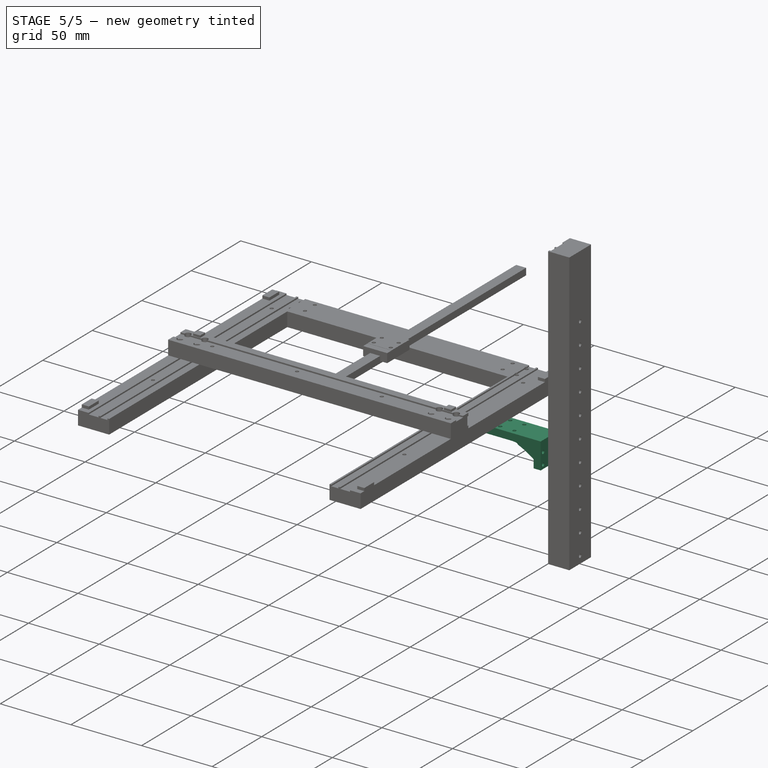
[diagram: stage 5 of 5 — iso view after this stage's code; geometry added in this stage tinted green]
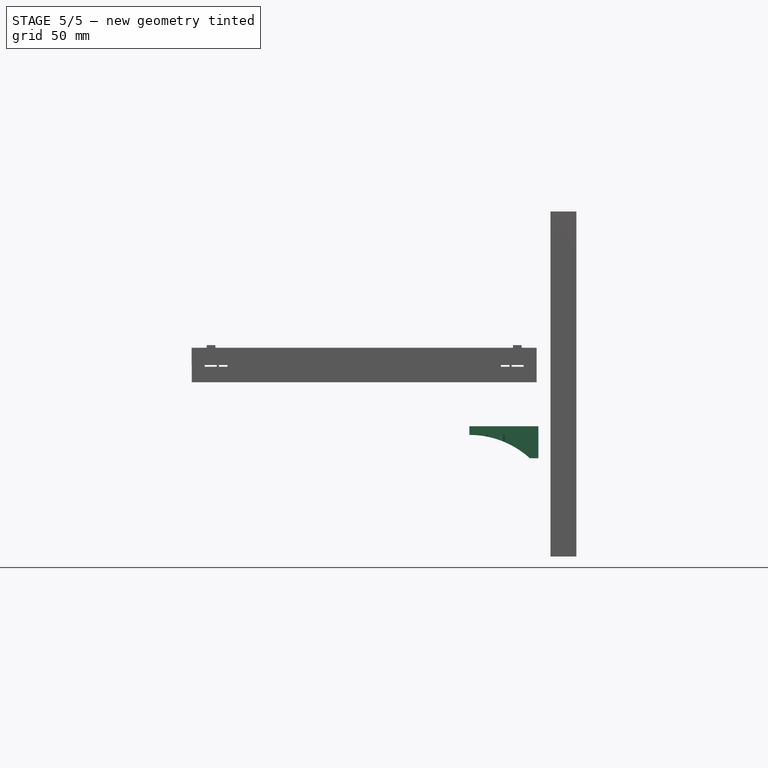
[diagram: stage 5 of 5 — front view after this stage's code; geometry added in this stage tinted green]
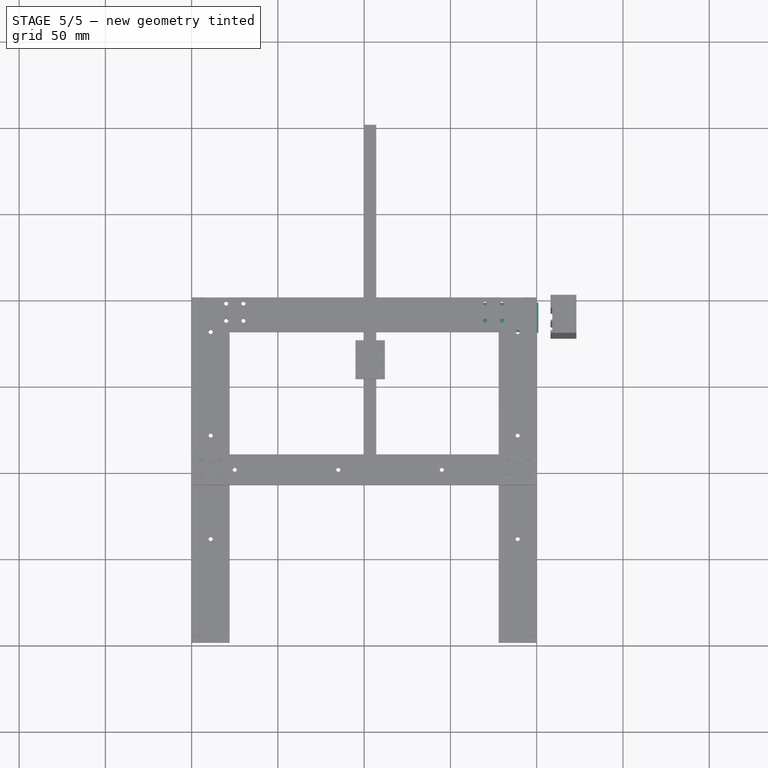
[diagram: stage 5 of 5 — top view after this stage's code; geometry added in this stage tinted green]
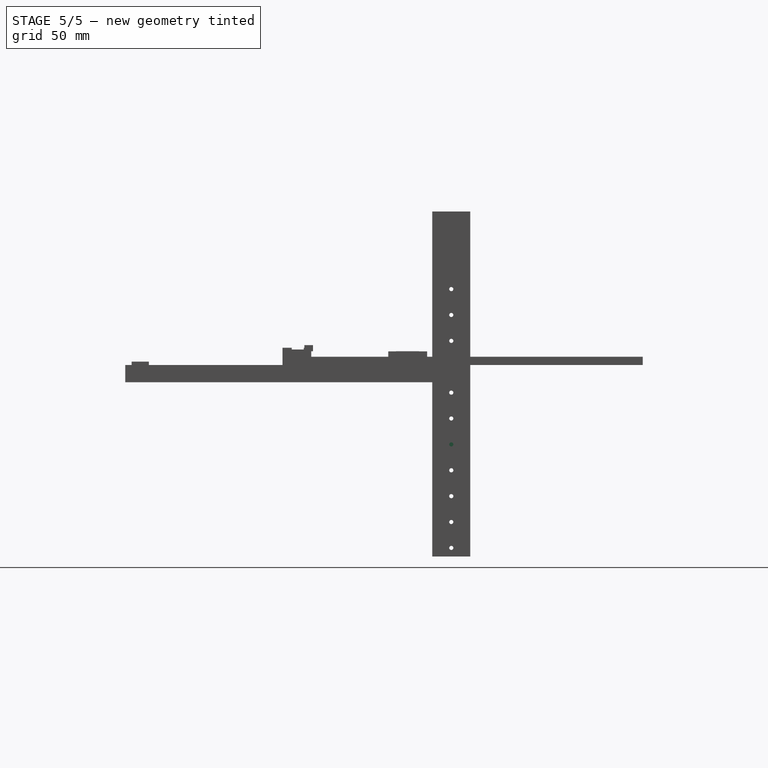
[diagram: stage 5 of 5 — right view after this stage's code; geometry added in this stage tinted green]
FEATURE [Sketcher::SketchObject] Sketch013
  ExternalGeometry = -> [Pad003]
  FullyConstrained = true
  MapMode = 5
  Placement = pos=(100,0,0) rot=(0.57735,0.57735,0.57735;2.0944rad)
  Support = -> [Pad003]
  expr: Constraints[9] = <<XRail>>.Potentiometer_Depth
  expr: Constraints[10] = <<XRail>>.Potentiometer_Height
  expr: Constraints[11] = <<XRail>>.YRail_Stopper_Height
  sketch-geometry (4):
    g0: LineSegment StartX=7.85 StartY=8 StartZ=0 EndX=8.85 EndY=8 EndZ=0
    g1: LineSegment StartX=8.85 StartY=8 StartZ=0 EndX=8.85 EndY=2 EndZ=0
    g2: LineSegment StartX=8.85 StartY=2 StartZ=0 EndX=7.85 EndY=2 EndZ=0
    g3: LineSegment StartX=7.85 StartY=2 StartZ=0 EndX=7.85 EndY=8 EndZ=0
  constraints (12):
    c: Coincident(g0,g1)
    c: Coincident(g1,g2)
    c: Coincident(g2,g3)
    c: Coincident(g3,g0)
    c: Horizontal(g0)
    c: Horizontal(g2)
    c: Vertical(g1)
    c: Vertical(g3)
    c: PointOnObject(g1,g-3)
    c: DistanceX(g0,g0) = 1
    c: DistanceY(g3,g3) = 6
    c: DistanceY(g-3,g1) = 2
FEATURE [Sketcher::SketchObject] Sketch014
  FullyConstrained = true
  MapMode = 5
  Placement = pos=(0,0,0) rot=(1,0,0;1.5708rad)
  Support = -> [XZ_Plane003]
  expr: Constraints[9] = <<MGN7-C>>.Rail_Width
  expr: Constraints[10] = <<MGN7-C>>.Rail_Height
  sketch-geometry (4):
    g0: LineSegment StartX=0 StartY=4.8 StartZ=0 EndX=7 EndY=4.8 EndZ=0
    g1: LineSegment StartX=7 StartY=4.8 StartZ=0 EndX=7 EndY=0 EndZ=0
    g2: LineSegment StartX=7 StartY=0 StartZ=0 EndX=0 EndY=0 EndZ=0
    g3: LineSegment StartX=0 StartY=0 StartZ=0 EndX=0 EndY=4.8 EndZ=0
  constraints (11):
    c: Coincident(g0,g1)
    c: Coincident(g1,g2)
    c: Coincident(g2,g3)
    c: Coincident(g3,g0)
    c: Horizontal(g0)
    c: Horizontal(g2)
    c: Vertical(g1)
    c: Vertical(g3)
    c: Coincident(g2,g-1)
    c: DistanceX(g2,g2) = 7
    c: DistanceY(g1,g1) = 4.8
FEATURE [PartDesign::Pad] Pad004
  Direction = (1,1,1)
  Length = 200
  Length2 = 100
  Placement = pos=(0,0,0) rot=(1,0,0;1.5708rad)
  Profile = -> Sketch014
  Reversed = true
  Type = 0
  expr: Length = <<MGN7-C>>.Rail_Length
FEATURE [Sketcher::SketchObject] Sketch015
  AttachmentOffset = pos=(0,0,-3.3) rot=(0,0,1;0rad)
  ExternalGeometry = -> [Pad004]
  FullyConstrained = true
  MapMode = 5
  Placement = pos=(0,3e-16,1.5) rot=(0,0,1;3.14159rad)
  Support = -> [Pad004]
  expr: Constraints[8] = <<MGN7-C>>.Offset1
  expr: Constraints[9] = <<MGN7-C>>.Head_Length
  expr: Constraints[10] = <<MGN7-C>>.Head_Width
  expr: .AttachmentOffset.Base.z = -<<MGN7-C>>.Rail_Height + <<MGN7-C>>.Rail_Bottom_To_Head_Bottom_Distance
  sketch-geometry (6):
    g0: LineSegment StartX=-12 StartY=-75 StartZ=0 EndX=5 EndY=-75 EndZ=0
    g1: LineSegment StartX=5 StartY=-75 StartZ=0 EndX=5 EndY=-52.5 EndZ=0
    g2: LineSegment StartX=5 StartY=-52.5 StartZ=0 EndX=-12 EndY=-52.5 EndZ=0
    g3: LineSegment StartX=-12 StartY=-52.5 StartZ=0 EndX=-12 EndY=-75 EndZ=0
    g4: GeomPoint X=-3.5 Y=-52.5 Z=0
    g5: LineSegment StartX=-3.5 StartY=0 StartZ=0 EndX=-3.5 EndY=-52.5 EndZ=0
  constraints (15):
    c: Coincident(g0,g1)
    c: Coincident(g1,g2)
    c: Coincident(g2,g3)
    c: Coincident(g3,g0)
    c: Horizontal(g0)
    c: Horizontal(g2)
    c: Vertical(g1)
    c: Vertical(g3)
    c: DistanceY(g0,g-1) = 75
    c: DistanceY(g1,g1) = 22.5
    c: DistanceX(g2,g2) = 17
    c: Symmetric(g2,g1,g4)
    c: Coincident(g5,g4)
    c: Vertical(g5)
    c: Symmetric(g-4,g-1,g5)
FEATURE [PartDesign::Pad] Pad005
  BaseFeature = -> Pad004
  Direction = (1,1,1)
  Length = 6.5
  Length2 = 100
  Placement = pos=(0,0,0) rot=(1,0,0;1.5708rad)
  Profile = -> Sketch015
  Type = 0
  expr: Length = <<MGN7-C>>.Head_Height
FEATURE [Sketcher::SketchObject] Sketch016
  ExternalGeometry = -> [Pad005]
  FullyConstrained = true
  MapMode = 5
  Placement = pos=(0,-1e-16,8) rot=(0,0,1;3.14159rad)
  Support = -> [Pad005]
  expr: Constraints[11] = <<MGN7-C>>.Head_Plate_Length
  sketch-geometry (13):
    g0: LineSegment StartX=-12 StartY=-57 StartZ=0 EndX=5 EndY=-57 EndZ=0
    g1: LineSegment StartX=5 StartY=-57 StartZ=0 EndX=5 EndY=-70.5 EndZ=0
    g2: LineSegment StartX=5 StartY=-70.5 StartZ=0 EndX=-12 EndY=-70.5 EndZ=0
    g3: LineSegment StartX=-12 StartY=-70.5 StartZ=0 EndX=-12 EndY=-57 EndZ=0
    g4: GeomPoint X=-12 Y=-63.75 Z=0
    g5: LineSegment StartX=-12 StartY=-52.5 StartZ=0 EndX=5 EndY=-52.5 EndZ=0
    g6: LineSegment StartX=5 StartY=-52.5 StartZ=0 EndX=5 EndY=-57 EndZ=0
    g7: LineSegment StartX=5 StartY=-57 StartZ=0 EndX=-12 EndY=-57 EndZ=0
    g8: LineSegment StartX=-12 StartY=-57 StartZ=0 EndX=-12 EndY=-52.5 EndZ=0
    g9: LineSegment StartX=-12 StartY=-70.5 StartZ=0 EndX=5 EndY=-70.5 EndZ=0
    g10: LineSegment StartX=5 StartY=-70.5 StartZ=0 EndX=5 EndY=-75 EndZ=0
    g11: LineSegment StartX=5 StartY=-75 StartZ=0 EndX=-12 EndY=-75 EndZ=0
    g12: LineSegment StartX=-12 StartY=-75 StartZ=0 EndX=-12 EndY=-70.5 EndZ=0
  constraints (32):
    c: Coincident(g0,g1)
    c: Coincident(g1,g2)
    c: Coincident(g2,g3)
    c: Coincident(g3,g0)
    c: Horizontal(g0)
    c: Horizontal(g2)
    c: Vertical(g1)
    c: Vertical(g3)
    c: PointOnObject(g0,g-5)
    c: Symmetric(g-4,g-3,g4)
    c: Symmetric(g0,g2,g4)
    c: DistanceY(g3,g3) = 13.5
    c: Coincident(g5,g6)
    c: Coincident(g6,g7)
    c: Coincident(g7,g8)
    c: Coincident(g8,g5)
    c: Horizontal(g5)
    c: Horizontal(g7)
    c: Vertical(g6)
    c: Vertical(g8)
    c: Coincident(g5,g-4)
    c: Coincident(g6,g0)
    c: Coincident(g9,g10)
    c: Coincident(g10,g11)
    c: Coincident(g11,g12)
    c: Coincident(g12,g9)
    c: Horizontal(g9)
    c: Horizontal(g11)
    c: Vertical(g10)
    c: Vertical(g12)
    c: Coincident(g9,g2)
    c: Coincident(g10,g-5)
FEATURE [PartDesign::Pocket] Pocket010
  BaseFeature = -> Pad005
  Length = 0.1
  Length2 = 100
  Placement = pos=(0,0,0) rot=(1,0,0;1.5708rad)
  Profile = -> Sketch016
  Type = 0
  expr: Length = <<MGN7-C>>.Head_Plate_Step_Down
FEATURE [Sketcher::SketchObject] Sketch017
  ExternalGeometry = -> [Pocket010]
  FullyConstrained = true
  MapMode = 5
  Placement = pos=(0,-1e-16,8) rot=(0,0,1;3.14159rad)
  Support = -> [Pocket010]
  expr: Constraints[19] = <<MGN7-C>>.Head_Screw_Placement_Width
  expr: Constraints[18] = <<MGN7-C>>.Head_Screw_Placement_Length
  expr: Constraints[16] = <<MGN7-C>>.Head_Screw_Body_Diameter / 2
  expr: Constraints[15] = <<MGN7-C>>.Head_Screw_Body_Diameter / 2
  expr: Constraints[17] = <<MGN7-C>>.Head_Screw_Body_Diameter / 2
  expr: Constraints[14] = <<MGN7-C>>.Head_Screw_Body_Diameter / 2
  sketch-geometry (9):
    g0: LineSegment StartX=-9.5 StartY=-59.75 StartZ=0 EndX=2.5 EndY=-59.75 EndZ=0
    g1: LineSegment StartX=2.5 StartY=-59.75 StartZ=0 EndX=2.5 EndY=-67.75 EndZ=0
    g2: LineSegment StartX=2.5 StartY=-67.75 StartZ=0 EndX=-9.5 EndY=-67.75 EndZ=0
    g3: LineSegment StartX=-9.5 StartY=-67.75 StartZ=0 EndX=-9.5 EndY=-59.75 EndZ=0
    g4: GeomPoint X=-3.5 Y=-63.75 Z=0
    g5: Circle CenterX=-9.5 CenterY=-59.75 CenterZ=0 NormalX=0 NormalY=0 NormalZ=1 AngleXU=0 Radius=1.2
    g6: Circle CenterX=2.5 CenterY=-59.75 CenterZ=0 NormalX=0 NormalY=0 NormalZ=1 AngleXU=0 Radius=1.2
    g7: Circle CenterX=2.5 CenterY=-67.75 CenterZ=0 NormalX=0 NormalY=0 NormalZ=1 AngleXU=0 Radius=1.2
    g8: Circle CenterX=-9.5 CenterY=-67.75 CenterZ=0 NormalX=0 NormalY=0 NormalZ=1 AngleXU=0 Radius=1.2
  constraints (20):
    c: Coincident(g0,g1)
    c: Coincident(g1,g2)
    c: Coincident(g2,g3)
    c: Coincident(g3,g0)
    c: Horizontal(g0)
    c: Horizontal(g2)
    c: Vertical(g1)
    c: Vertical(g3)
    c: Symmetric(g-4,g-3,g4)
    c: Symmetric(g0,g1,g4)
    c: Coincident(g5,g0)
    c: Coincident(g6,g0)
    c: Coincident(g7,g1)
    c: Coincident(g8,g2)
    c: Radius(g5) = 1.2
    c: Radius(g6) = 1.2
    c: Radius(g7) = 1.2
    c: Radius(g8) = 1.2
    c: DistanceY(g3,g3) = 8
    c: DistanceX(g0,g0) = 12
FEATURE [PartDesign::Pocket] Pocket011
  BaseFeature = -> Pocket010
  Length = 2.5
  Length2 = 100
  Placement = pos=(0,0,0) rot=(1,0,0;1.5708rad)
  Profile = -> Sketch017
  Type = 0
  expr: Length = <<MGN7-C>>.Head_Screw_Hole_Height
FEATURE [PartDesign::Body] Body003  label="Rail"
  Group = -> [Sketch014,Pad004,Sketch015,Pad005,Sketch016,Pocket010,Sketch017,Pocket011]
  Origin = -> Origin003
  Tip = -> Pocket011
FEATURE [Sketcher::SketchObject] Sketch018
  FullyConstrained = true
  MapMode = 5
  Placement = pos=(0,0,0) rot=(1,0,0;1.5708rad)
  Support = -> [XZ_Plane004]
  expr: Constraints[10] = <<MGN7-C>>.Rail_Height
  expr: Constraints[9] = <<MGN7-C>>.Rail_Width
  sketch-geometry (4):
    g0: LineSegment StartX=0 StartY=4.8 StartZ=0 EndX=7 EndY=4.8 EndZ=0
    g1: LineSegment StartX=7 StartY=4.8 StartZ=0 EndX=7 EndY=0 EndZ=0
    g2: LineSegment StartX=7 StartY=0 StartZ=0 EndX=0 EndY=0 EndZ=0
    g3: LineSegment StartX=0 StartY=0 StartZ=0 EndX=0 EndY=4.8 EndZ=0
  constraints (11):
    c: Coincident(g0,g1)
    c: Coincident(g1,g2)
    c: Coincident(g2,g3)
    c: Coincident(g3,g0)
    c: Horizontal(g0)
    c: Horizontal(g2)
    c: Vertical(g1)
    c: Vertical(g3)
    c: Coincident(g2,g-1)
    c: DistanceX(g2,g2) = 7
    c: DistanceY(g1,g1) = 4.8
FEATURE [PartDesign::Pad] Pad006
  Direction = (1,1,1)
  Length = 200
  Length2 = 100
  Placement = pos=(0,0,0) rot=(1,0,0;1.5708rad)
  Profile = -> Sketch018
  Reversed = true
  Type = 0
  expr: Length = <<MGN7-C>>.Rail_Length
FEATURE [Sketcher::SketchObject] Sketch019
  AttachmentOffset = pos=(0,0,-3.3) rot=(0,0,1;0rad)
  ExternalGeometry = -> [Pad006]
  FullyConstrained = true
  MapMode = 5
  Placement = pos=(0,3e-16,1.5) rot=(0,0,1;3.14159rad)
  Support = -> [Pad006]
  expr: .AttachmentOffset.Base.z = -<<MGN7-C>>.Rail_Height + <<MGN7-C>>.Rail_Bottom_To_Head_Bottom_Distance
  expr: Constraints[10] = <<MGN7-C>>.Head_Width
  expr: Constraints[9] = <<MGN7-C>>.Head_Length
  expr: Constraints[8] = <<MGN7-C>>.Offset1
  sketch-geometry (6):
    g0: LineSegment StartX=-12 StartY=-75 StartZ=0 EndX=5 EndY=-75 EndZ=0
    g1: LineSegment StartX=5 StartY=-75 StartZ=0 EndX=5 EndY=-52.5 EndZ=0
    g2: LineSegment StartX=5 StartY=-52.5 StartZ=0 EndX=-12 EndY=-52.5 EndZ=0
    g3: LineSegment StartX=-12 StartY=-52.5 StartZ=0 EndX=-12 EndY=-75 EndZ=0
    g4: GeomPoint X=-3.5 Y=-52.5 Z=0
    g5: LineSegment StartX=-3.5 StartY=0 StartZ=0 EndX=-3.5 EndY=-52.5 EndZ=0
  constraints (15):
    c: Coincident(g0,g1)
    c: Coincident(g1,g2)
    c: Coincident(g2,g3)
    c: Coincident(g3,g0)
    c: Horizontal(g0)
    c: Horizontal(g2)
    c: Vertical(g1)
    c: Vertical(g3)
    c: DistanceY(g0,g-1) = 75
    c: DistanceY(g1,g1) = 22.5
    c: DistanceX(g2,g2) = 17
    c: Symmetric(g2,g1,g4)
    c: Coincident(g5,g4)
    c: Vertical(g5)
    c: Symmetric(g-4,g-1,g5)
FEATURE [PartDesign::Pad] Pad007
  BaseFeature = -> Pad006
  Direction = (1,1,1)
  Length = 6.5
  Length2 = 100
  Placement = pos=(0,0,0) rot=(1,0,0;1.5708rad)
  Profile = -> Sketch019
  Type = 0
  expr: Length = <<MGN7-C>>.Head_Height
FEATURE [Sketcher::SketchObject] Sketch021
  ExternalGeometry = -> [Pad007]
  FullyConstrained = true
  MapMode = 5
  Placement = pos=(0,-1e-16,8) rot=(0,0,1;3.14159rad)
  Support = -> [Pad007]
  expr: Constraints[11] = <<MGN7-C>>.Head_Plate_Length
  sketch-geometry (13):
    g0: LineSegment StartX=-12 StartY=-57 StartZ=0 EndX=5 EndY=-57 EndZ=0
    g1: LineSegment StartX=5 StartY=-57 StartZ=0 EndX=5 EndY=-70.5 EndZ=0
    g2: LineSegment StartX=5 StartY=-70.5 StartZ=0 EndX=-12 EndY=-70.5 EndZ=0
    g3: LineSegment StartX=-12 StartY=-70.5 StartZ=0 EndX=-12 EndY=-57 EndZ=0
    g4: GeomPoint X=-12 Y=-63.75 Z=0
    g5: LineSegment StartX=-12 StartY=-52.5 StartZ=0 EndX=5 EndY=-52.5 EndZ=0
    g6: LineSegment StartX=5 StartY=-52.5 StartZ=0 EndX=5 EndY=-57 EndZ=0
    g7: LineSegment StartX=5 StartY=-57 StartZ=0 EndX=-12 EndY=-57 EndZ=0
    g8: LineSegment StartX=-12 StartY=-57 StartZ=0 EndX=-12 EndY=-52.5 EndZ=0
    g9: LineSegment StartX=-12 StartY=-70.5 StartZ=0 EndX=5 EndY=-70.5 EndZ=0
    g10: LineSegment StartX=5 StartY=-70.5 StartZ=0 EndX=5 EndY=-75 EndZ=0
    g11: LineSegment StartX=5 StartY=-75 StartZ=0 EndX=-12 EndY=-75 EndZ=0
    g12: LineSegment StartX=-12 StartY=-75 StartZ=0 EndX=-12 EndY=-70.5 EndZ=0
  constraints (32):
    c: Coincident(g0,g1)
    c: Coincident(g1,g2)
    c: Coincident(g2,g3)
    c: Coincident(g3,g0)
    c: Horizontal(g0)
    c: Horizontal(g2)
    c: Vertical(g1)
    c: Vertical(g3)
    c: PointOnObject(g0,g-5)
    c: Symmetric(g-4,g-3,g4)
    c: Symmetric(g0,g2,g4)
    c: DistanceY(g3,g3) = 13.5
    c: Coincident(g5,g6)
    c: Coincident(g6,g7)
    c: Coincident(g7,g8)
    c: Coincident(g8,g5)
    c: Horizontal(g5)
    c: Horizontal(g7)
    c: Vertical(g6)
    c: Vertical(g8)
    c: Coincident(g5,g-4)
    c: Coincident(g6,g0)
    c: Coincident(g9,g10)
    c: Coincident(g10,g11)
    c: Coincident(g11,g12)
    c: Coincident(g12,g9)
    c: Horizontal(g9)
    c: Horizontal(g11)
    c: Vertical(g10)
    c: Vertical(g12)
    c: Coincident(g9,g2)
    c: Coincident(g10,g-5)
FEATURE [PartDesign::Pocket] Pocket012
  BaseFeature = -> Pad007
  Length = 0.1
  Length2 = 100
  Placement = pos=(0,0,0) rot=(1,0,0;1.5708rad)
  Profile = -> Sketch021
  Type = 0
  expr: Length = <<MGN7-C>>.Head_Plate_Step_Down
FEATURE [Sketcher::SketchObject] Sketch020
  ExternalGeometry = -> [Pocket012]
  FullyConstrained = true
  MapMode = 5
  Placement = pos=(0,-1e-16,8) rot=(0,0,1;3.14159rad)
  Support = -> [Pocket012]
  expr: Constraints[14] = <<MGN7-C>>.Head_Screw_Body_Diameter / 2
  expr: Constraints[17] = <<MGN7-C>>.Head_Screw_Body_Diameter / 2
  expr: Constraints[15] = <<MGN7-C>>.Head_Screw_Body_Diameter / 2
  expr: Constraints[16] = <<MGN7-C>>.Head_Screw_Body_Diameter / 2
  expr: Constraints[18] = <<MGN7-C>>.Head_Screw_Placement_Length
  expr: Constraints[19] = <<MGN7-C>>.Head_Screw_Placement_Width
  sketch-geometry (9):
    g0: LineSegment StartX=-9.5 StartY=-59.75 StartZ=0 EndX=2.5 EndY=-59.75 EndZ=0
    g1: LineSegment StartX=2.5 StartY=-59.75 StartZ=0 EndX=2.5 EndY=-67.75 EndZ=0
    g2: LineSegment StartX=2.5 StartY=-67.75 StartZ=0 EndX=-9.5 EndY=-67.75 EndZ=0
    g3: LineSegment StartX=-9.5 StartY=-67.75 StartZ=0 EndX=-9.5 EndY=-59.75 EndZ=0
    g4: GeomPoint X=-3.5 Y=-63.75 Z=0
    g5: Circle CenterX=-9.5 CenterY=-59.75 CenterZ=0 NormalX=0 NormalY=0 NormalZ=1 AngleXU=0 Radius=1.2
    g6: Circle CenterX=2.5 CenterY=-59.75 CenterZ=0 NormalX=0 NormalY=0 NormalZ=1 AngleXU=0 Radius=1.2
    g7: Circle CenterX=2.5 CenterY=-67.75 CenterZ=0 NormalX=0 NormalY=0 NormalZ=1 AngleXU=0 Radius=1.2
    g8: Circle CenterX=-9.5 CenterY=-67.75 CenterZ=0 NormalX=0 NormalY=0 NormalZ=1 AngleXU=0 Radius=1.2
  constraints (20):
    c: Coincident(g0,g1)
    c: Coincident(g1,g2)
    c: Coincident(g2,g3)
    c: Coincident(g3,g0)
    c: Horizontal(g0)
    c: Horizontal(g2)
    c: Vertical(g1)
    c: Vertical(g3)
    c: Symmetric(g-4,g-3,g4)
    c: Symmetric(g0,g1,g4)
    c: Coincident(g5,g0)
    c: Coincident(g6,g0)
    c: Coincident(g7,g1)
    c: Coincident(g8,g2)
    c: Radius(g5) = 1.2
    c: Radius(g6) = 1.2
    c: Radius(g7) = 1.2
    c: Radius(g8) = 1.2
    c: DistanceY(g3,g3) = 8
    c: DistanceX(g0,g0) = 12
FEATURE [PartDesign::Pocket] Pocket013
  BaseFeature = -> Pocket012
  Length = 2.5
  Length2 = 100
  Placement = pos=(0,0,0) rot=(1,0,0;1.5708rad)
  Profile = -> Sketch020
  Type = 0
  expr: Length = <<MGN7-C>>.Head_Screw_Hole_Height
FEATURE [PartDesign::Body] Body009  label="Rail_Z_002"
  Group = -> [Sketch039,Pad017,Sketch038,Pad018,Sketch041,Pocket021,Sketch040,Pocket022]
  Origin = -> Origin009
  Placement = pos=(109,92.5,-111) rot=(0.57735,-0.57735,-0.57735;2.0944rad)
  Tip = -> Pocket022
FEATURE [Part::Mirroring] Part__Mirroring  label="YZConnectorBody (Mirror #1)"
  Base = (0,0,0)
  Normal = (1,0,0)
  Source = -> Body002
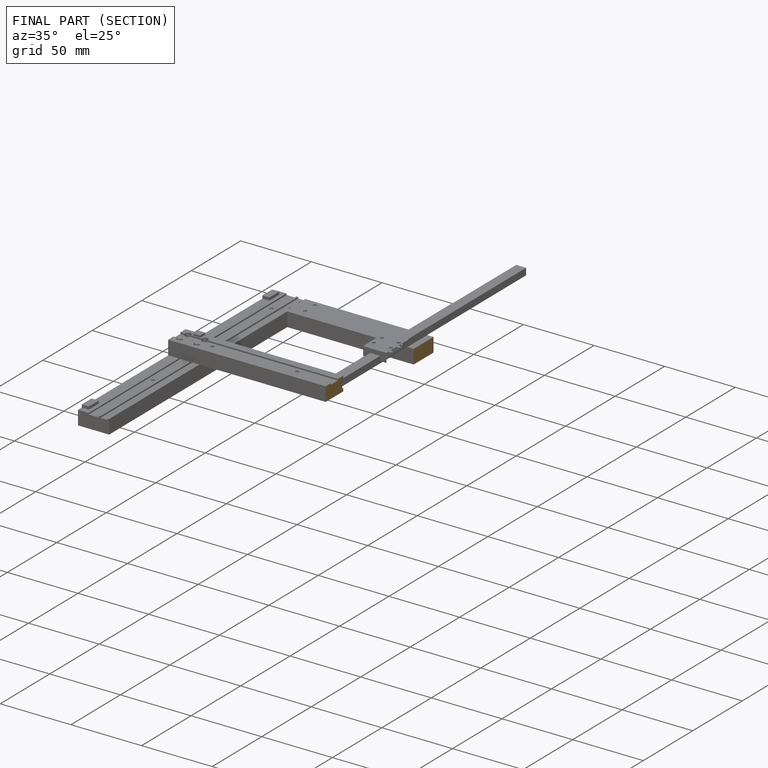
[diagram: finished part — half-section view (interior)]
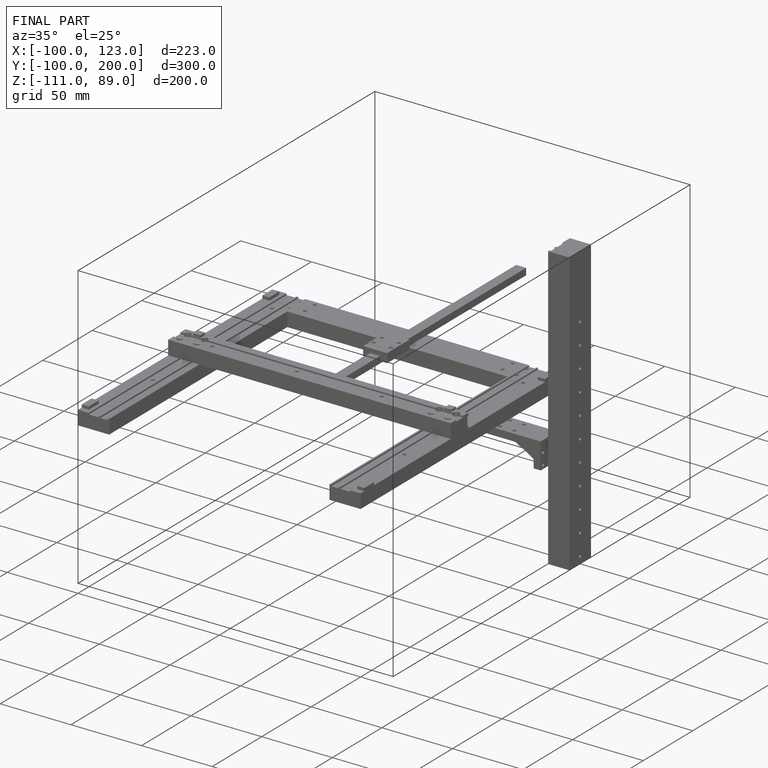
[diagram: finished part — iso view with bounding-box wireframe]
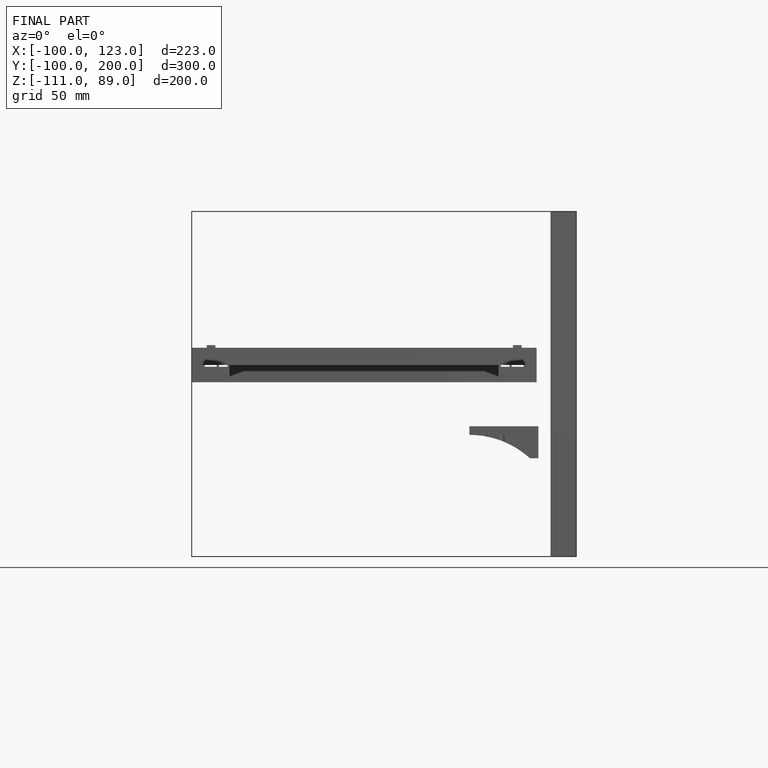
[diagram: finished part — front view with bounding-box wireframe]
